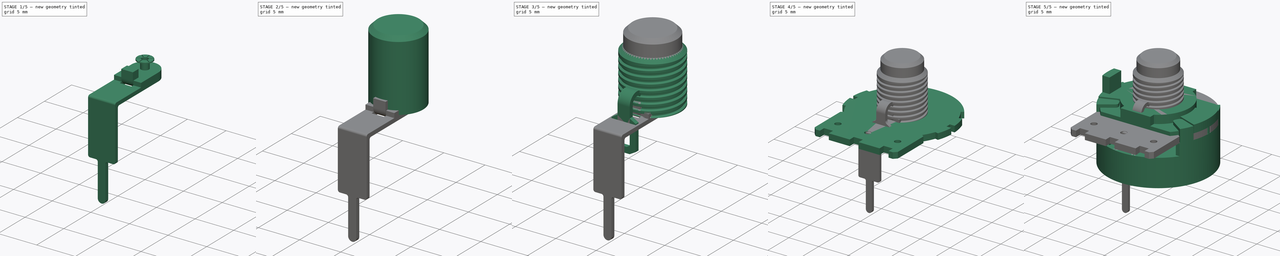
[diagram: build sequence overview — one tinted view per stage of 5, left to right]
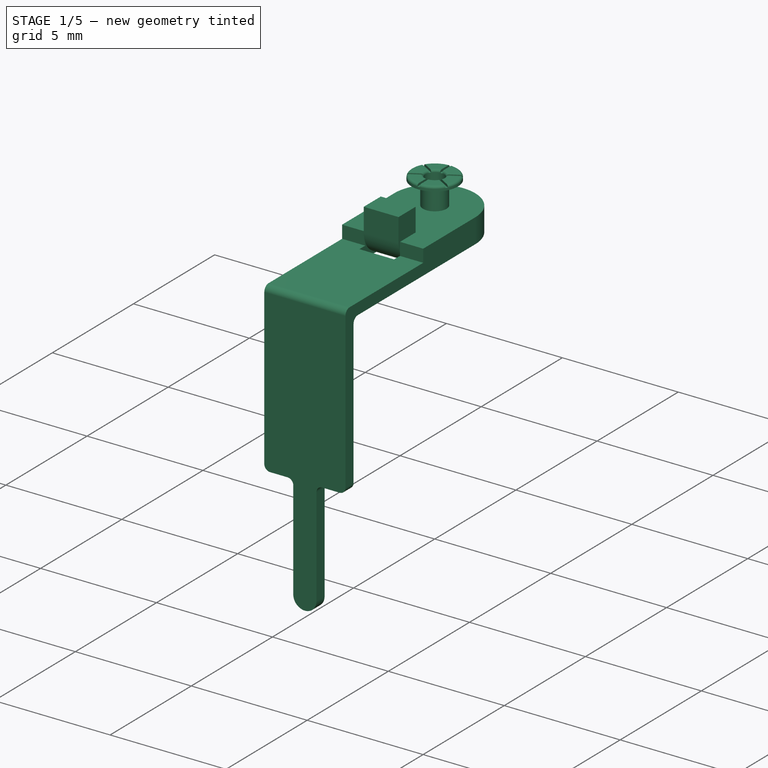
[diagram: stage 1 of 5 — iso view after this stage's code; geometry added in this stage tinted green]
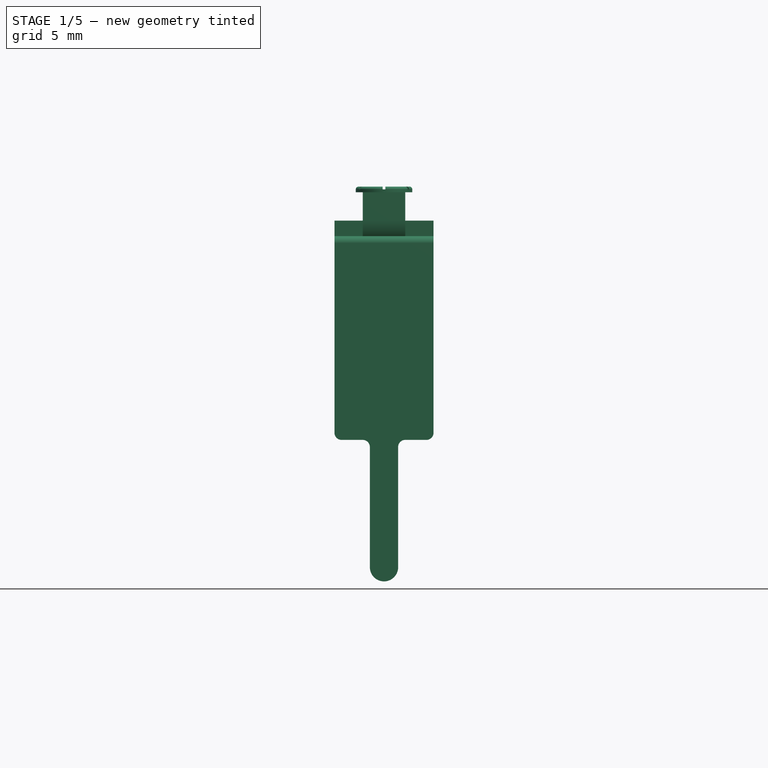
[diagram: stage 1 of 5 — front view after this stage's code; geometry added in this stage tinted green]
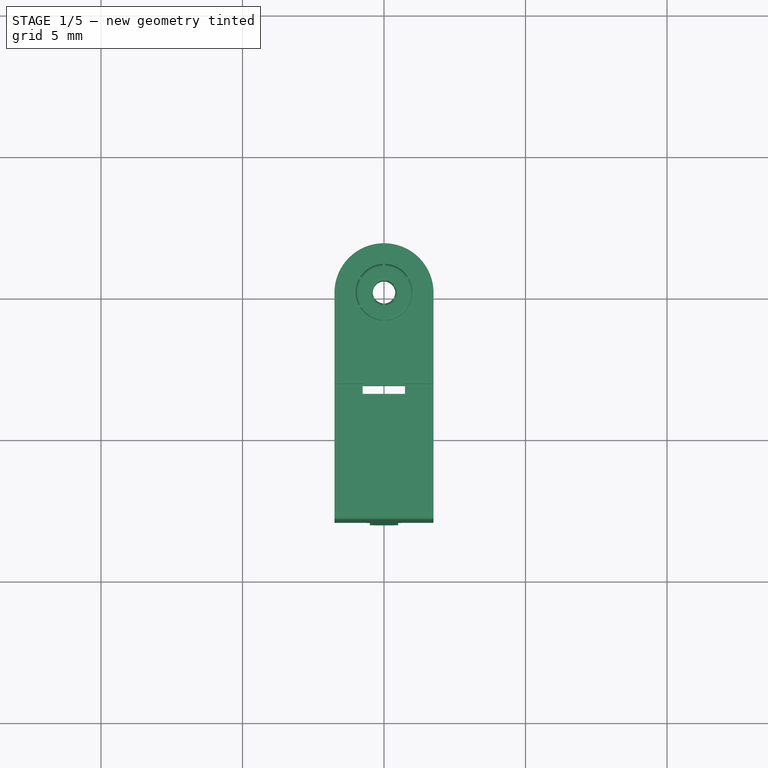
[diagram: stage 1 of 5 — top view after this stage's code; geometry added in this stage tinted green]
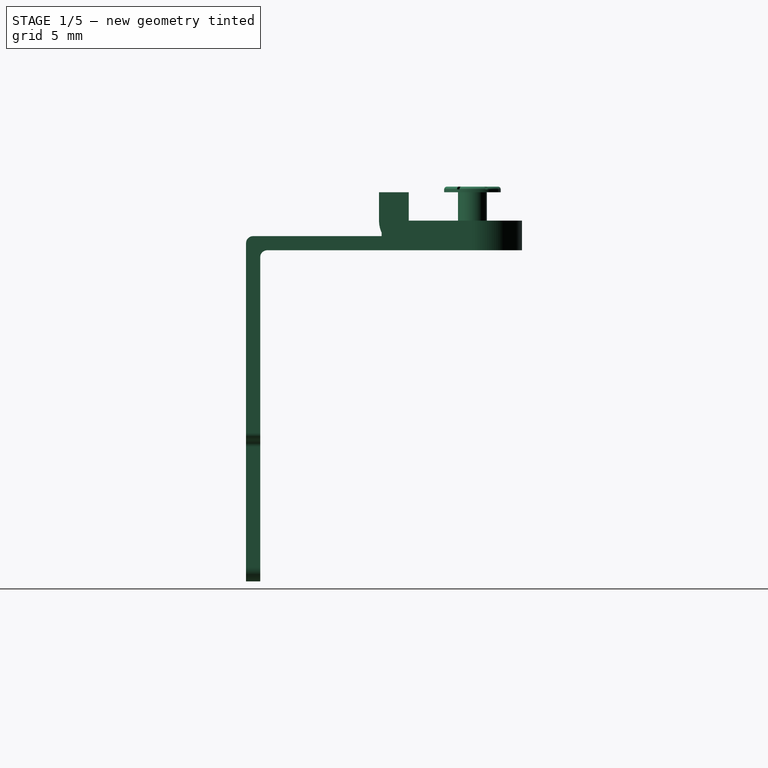
[diagram: stage 1 of 5 — right view after this stage's code; geometry added in this stage tinted green]
FCSTD DOCUMENT  (FreeCAD 0.19R16945 (Git))
Label: Alpha Taiwan RV16AF Series
License: All rights reserved
LicenseURL: http://en.wikipedia.org/wiki/All_rights_reserved
objects: Sketcher::SketchObject×38, PartDesign::Pad×23, PartDesign::Body×15, PartDesign::Fillet×15, PartDesign::Pocket×14, PartDesign::FeatureBase×6, App::DocumentObjectGroup×6, PartDesign::PolarPattern×5, PartDesign::FeaturePython×4, PartDesign::Plane×3, PartDesign::ShapeBinder×3, PartDesign::Chamfer×3, PartDesign::Mirrored×2, PartDesign::MultiTransform×2, App::Part×2, Spreadsheet::Sheet×1, PartDesign::Thickness×1, Part::Helix×1, PartDesign::SubtractivePipe×1
note: 174 computed .brp shape members not serialized (recipe doc carries the construction recipe); baked Part::Feature solids carry a one-line shape summary decoded from their .brp

FEATURE [PartDesign::Body] Body011  label="RV16_Terminal_Type_20_3"
  BaseFeature = -> Body009
  Group = -> [Clone003]
  Origin = -> Origin003
  Placement = pos=(5,-8.25,-1.5) rot=(0,0,1;0rad)
  Tip = -> Clone003
FEATURE [App::DocumentObjectGroup] Group004  label="20"
  Group = -> [Body010,Body009,Body011]
FEATURE [Sketcher::SketchObject] Sketch031
  MapMode = 5
  Support = -> [XY_Plane016]
  sketch-geometry (12):
    g0: Circle CenterX=0 CenterY=0 CenterZ=0 NormalX=0 NormalY=0 NormalZ=1 AngleXU=0 Radius=0.5
    g1: ArcOfCircle CenterX=0 CenterY=0 CenterZ=0 NormalX=0 NormalY=0 NormalZ=1 AngleXU=0 Radius=1.75 StartAngle=0 EndAngle=3.14159
    g2: LineSegment StartX=1.75 StartY=-4.25 StartZ=0 EndX=1.75 EndY=0 EndZ=0
    g3: LineSegment StartX=-1.75 StartY=2e-16 StartZ=0 EndX=-1.75 EndY=-4.25 EndZ=0
    g4: GeomPoint X=0 Y=1.75 Z=0
    g5: LineSegment StartX=-0.75 StartY=-2.25 StartZ=0 EndX=0.75 EndY=-2.25 EndZ=0
    g6: LineSegment StartX=0.75 StartY=-2.25 StartZ=0 EndX=0.75 EndY=-3.25 EndZ=0
    g7: LineSegment StartX=0.75 StartY=-3.25 StartZ=0 EndX=-0.75 EndY=-3.25 EndZ=0
    g8: LineSegment StartX=-0.75 StartY=-3.25 StartZ=0 EndX=-0.75 EndY=-2.25 EndZ=0
    g9: LineSegment StartX=-1.75 StartY=-4.25 StartZ=0 EndX=-1.75 EndY=-8 EndZ=0
    g10: LineSegment StartX=-1.75 StartY=-8 StartZ=0 EndX=1.75 EndY=-8 EndZ=0
    g11: LineSegment StartX=1.75 StartY=-8 StartZ=0 EndX=1.75 EndY=-4.25 EndZ=0
  constraints (33):
    c: Radius(g0) = 0.5
    c: Coincident(g1,g0)
    c: Coincident(g2,g1)
    c: Vertical(g2)
    c: Coincident(g3,g1)
    c: PointOnObject(g4,g1)
    c: DistanceY(g3,g4) = 6
    c: DistanceX(g3,g2) = 3.5
    c: Coincident(g0,g-1)
    c: Vertical(g3)
    c: PointOnObject(g1,g-1)
    c: PointOnObject(g1,g-1)
    c: PointOnObject(g4,g-2)
    c: DistanceY(g2,g0) = 4.25
    c: Coincident(g5,g6)
    c: Coincident(g6,g7)
    c: Coincident(g7,g8)
    c: Coincident(g8,g5)
    c: Horizontal(g7)
    c: Vertical(g6)
    c: Vertical(g8)
    c: Symmetric(g5,g5,g-2)
    c: DistanceX(g5,g5) = 1.5
    c: DistanceY(g6,g6) = 1
    c: DistanceY(g2,g6) = 1
    c: Coincident(g3,g9)
    c: Vertical(g9)
    c: Coincident(g9,g10)
    c: Horizontal(g10)
    c: Coincident(g10,g11)
    c: Coincident(g11,g2)
    c: Vertical(g11)
    c: DistanceY(g9,g0) = 8
FEATURE [PartDesign::Pad] Pad019
  Length = 0.5
  Length2 = 0.55
  Profile = -> Sketch031
  Type = 4
FEATURE [Sketcher::SketchObject] Sketch032
  MapMode = 5
  Support = -> [XY_Plane016]
  sketch-geometry (4):
    g0: LineSegment StartX=-2.81674 StartY=-8.24629 StartZ=0 EndX=2.1027 EndY=-8.24629 EndZ=0
    g1: LineSegment StartX=2.1027 StartY=-8.24629 StartZ=0 EndX=2.1027 EndY=-3.20834 EndZ=0
    g2: LineSegment StartX=2.1027 StartY=-3.20834 StartZ=0 EndX=-2.81674 EndY=-3.20834 EndZ=0
    g3: LineSegment StartX=-2.81674 StartY=-3.20834 StartZ=0 EndX=-2.81674 EndY=-8.24629 EndZ=0
  constraints (8):
    c: Coincident(g0,g1)
    c: Coincident(g1,g2)
    c: Coincident(g2,g3)
    c: Coincident(g3,g0)
    c: Horizontal(g0)
    c: Horizontal(g2)
    c: Vertical(g1)
    c: Vertical(g3)
FEATURE [PartDesign::Pocket] Pocket010
  BaseFeature = -> Pad019
  Length = 0.05
  Length2 = 1.55
  Profile = -> Sketch032
  Reversed = true
  Type = 4
FEATURE [Sketcher::SketchObject] Sketch033
  MapMode = 5
  Support = -> [XY_Plane016]
  sketch-geometry (2):
    g0: Circle CenterX=0 CenterY=0 CenterZ=0 NormalX=0 NormalY=0 NormalZ=1 AngleXU=0 Radius=0.51
    g1: Circle CenterX=0 CenterY=0 CenterZ=0 NormalX=0 NormalY=0 NormalZ=1 AngleXU=0 Radius=0.4
  constraints (4):
    c: Coincident(g0,g-1)
    c: Coincident(g1,g0)
    c: Radius(g0) = 0.51
    c: Radius(g1) = 0.4
FEATURE [Sketcher::SketchObject] Sketch034
  AttachmentOffset = pos=(0,0,1.5) rot=(0,0,1;0rad)
  MapMode = 5
  Placement = pos=(0,0,1.5) rot=(0,0,1;0rad)
  Support = -> [XY_Plane016]
  sketch-geometry (1):
    g0: Circle CenterX=0 CenterY=0 CenterZ=0 NormalX=0 NormalY=0 NormalZ=1 AngleXU=0 Radius=1
  constraints (2):
    c: Coincident(g0,g-1)
    c: Radius(g0) = 1
FEATURE [Sketcher::SketchObject] Sketch035
  AttachmentOffset = pos=(0,0,1.7) rot=(0,0,1;0rad)
  MapMode = 5
  Placement = pos=(0,0,1.7) rot=(0,0,1;0rad)
  Support = -> [XY_Plane016]
  sketch-geometry (1):
    g0: Circle CenterX=0 CenterY=0 CenterZ=0 NormalX=0 NormalY=0 NormalZ=1 AngleXU=0 Radius=0.4
  constraints (2):
    c: Coincident(g0,g-1)
    c: Radius(g0) = 0.4
FEATURE [Sketcher::SketchObject] Sketch036
  AttachmentOffset = pos=(0,0,1.7) rot=(0,0,1;0rad)
  MapMode = 5
  Placement = pos=(0,0,1.7) rot=(0,0,1;0rad)
  Support = -> [XY_Plane016]
  sketch-geometry (4):
    g0: LineSegment StartX=-0.05 StartY=0 StartZ=0 EndX=-0.05 EndY=1.7847 EndZ=0
    g1: LineSegment StartX=0.05 StartY=1.7847 StartZ=0 EndX=0.05 EndY=0 EndZ=0
    g2: LineSegment StartX=-0.05 StartY=1.7847 StartZ=0 EndX=0.05 EndY=1.7847 EndZ=0
    g3: LineSegment StartX=-0.05 StartY=0 StartZ=0 EndX=0.05 EndY=0 EndZ=0
  constraints (10):
    c: PointOnObject(g0,g-1)
    c: Vertical(g0)
    c: PointOnObject(g1,g-1)
    c: Vertical(g1)
    c: Coincident(g2,g0)
    c: Coincident(g2,g1)
    c: Coincident(g3,g0)
    c: Coincident(g3,g1)
    c: DistanceX(g2,g2) = 0.1
    c: Symmetric(g1,g0,g-2)
FEATURE [Sketcher::SketchObject] Sketch037
  MapMode = 5
  Support = -> [XY_Plane016]
  sketch-geometry (4):
    g0: LineSegment StartX=-0.753187 StartY=-3.24536 StartZ=0 EndX=0.743052 EndY=-3.24536 EndZ=0
    g1: LineSegment StartX=0.743052 StartY=-3.24536 StartZ=0 EndX=0.743052 EndY=-3.56595 EndZ=0
    g2: LineSegment StartX=0.743052 StartY=-3.56595 StartZ=0 EndX=-0.753187 EndY=-3.56595 EndZ=0
    g3: LineSegment StartX=-0.753187 StartY=-3.56595 StartZ=0 EndX=-0.753187 EndY=-3.24536 EndZ=0
  constraints (8):
    c: Coincident(g0,g1)
    c: Coincident(g1,g2)
    c: Coincident(g2,g3)
    c: Coincident(g3,g0)
    c: Horizontal(g0)
    c: Horizontal(g2)
    c: Vertical(g1)
    c: Vertical(g3)
FEATURE [PartDesign::Pocket] Pocket013
  BaseFeature = -> Pocket010
  Length = 5
  Length2 = 100
  Profile = -> Sketch037
  Type = 0
FEATURE [PartDesign::Pad] Pad020
  BaseFeature = -> Pocket013
  Length = 1.5
  Length2 = 100
  Profile = -> Sketch033
  Type = 0
FEATURE [PartDesign::Pad] Pad021
  BaseFeature = -> Pad020
  Length = 0.2
  Length2 = 100
  Profile = -> Sketch034
  Type = 0
FEATURE [PartDesign::Pocket] Pocket011
  BaseFeature = -> Pad021
  Length = 1
  Length2 = 100
  Profile = -> Sketch035
  Type = 0
FEATURE [PartDesign::Fillet] Fillet012
  Base = -> Pocket011 [Edge5,Edge3]
  BaseFeature = -> Pocket011
  Radius = 0.1
FEATURE [PartDesign::Pocket] Pocket012
  BaseFeature = -> Fillet012
  Length = 0.1
  Length2 = 100
  Profile = -> Sketch036
  Type = 0
FEATURE [PartDesign::PolarPattern] PolarPattern004
  Angle = 360
  Axis = -> Sketch036 [N_Axis]
  BaseFeature = -> Pocket012
  Occurrences = 6
  Originals = -> [Pocket012]
FEATURE [Sketcher::SketchObject] Sketch038
  AttachmentOffset = pos=(0,0,8) rot=(0,0,1;0rad)
  MapMode = 5
  Placement = pos=(0,-8,-1.8e-15) rot=(1,0,0;1.5708rad)
  Support = -> [XZ_Plane016]
  sketch-geometry (9):
    g0: LineSegment StartX=-1.75 StartY=-0.55 StartZ=0 EndX=1.75 EndY=-0.55 EndZ=0
    g1: LineSegment StartX=1.75 StartY=-0.55 StartZ=0 EndX=1.75 EndY=-7.25 EndZ=0
    g2: LineSegment StartX=-1.75 StartY=-7.25 StartZ=0 EndX=-1.75 EndY=-0.55 EndZ=0
    g3: LineSegment StartX=-1.75 StartY=-7.25 StartZ=0 EndX=-0.5 EndY=-7.25 EndZ=0
    g4: LineSegment StartX=-0.5 StartY=-7.25 StartZ=0 EndX=-0.5 EndY=-11.75 EndZ=0
    g5: LineSegment StartX=0.5 StartY=-11.75 StartZ=0 EndX=0.5 EndY=-7.25 EndZ=0
    g6: LineSegment StartX=0.5 StartY=-7.25 StartZ=0 EndX=1.75 EndY=-7.25 EndZ=0
    g7: ArcOfCircle CenterX=0 CenterY=-11.75 CenterZ=0 NormalX=0 NormalY=0 NormalZ=1 AngleXU=0 Radius=0.5 StartAngle=3.14159 EndAngle=6.28319
    g8: GeomPoint X=0 Y=-12.25 Z=0
  constraints (25):
    c: Coincident(g0,g1)
    c: Coincident(g2,g0)
    c: Vertical(g1)
    c: Vertical(g2)
    c: Symmetric(g0,g0,g-2)
    c: DistanceX(g0,g0) = 3.5
    c: DistanceY(g0,g-1) = 0.55
    c: Equal(g2,g1)
    c: DistanceY(g1,g1) = 6.7
    c: Coincident(g2,g3)
    c: Horizontal(g3)
    c: Coincident(g3,g4)
    c: Vertical(g4)
    c: Coincident(g5,g6)
    c: Coincident(g6,g1)
    c: Horizontal(g6)
    c: Symmetric(g5,g4,g-2)
    c: Equal(g6,g3)
    c: DistanceX(g4,g5) = 1
    c: Coincident(g7,g4)
    c: Coincident(g7,g5)
    c: Horizontal(g7,g4)
    c: PointOnObject(g8,g7)
    c: PointOnObject(g8,g-2)
    c: DistanceY(g8,g1) = 5
FEATURE [PartDesign::Pad] Pad022
  BaseFeature = -> PolarPattern004
  Length = 0.5
  Length2 = 100
  Profile = -> Sketch038
  Refine = true
  Reversed = true
  Type = 0
FEATURE [PartDesign::FeaturePython] Bend003  # WARN: FeaturePython — macro-defined, semantics opaque (R4)
  AutoMiter = true
  BaseFeature = -> Pad022
  BendType = 0
  LengthList = [1]
  ReliefFactor = 0.7
  UseReliefFactor = false
  angle = 90
  baseObject = -> Pad022 [Face46]
  bendAList = [90]
  extend1 = 0
  extend2 = 0
  gap1 = 0
  gap2 = 0
  invert = false
  kfactor = 0.5
  length = 1
  miterangle1 = 0
  miterangle2 = 0
  offset = 0
  radius = 0.001
  reliefType = 0
  reliefd = 1
  reliefw = 0.8
  sketchflip = false
  sketchinvert = false
  unfold = false
FEATURE [PartDesign::Fillet] Fillet013
  Base = -> Bend003 [Edge55,Edge48,Edge86,Edge85]
  BaseFeature = -> Bend003
  Radius = 0.25
FEATURE [PartDesign::Fillet] Fillet014
  Base = -> Fillet013 [Edge35,Edge17]
  BaseFeature = -> Fillet013
  Radius = 0.25
FEATURE [PartDesign::Body] Body013  label="RV16_Terminal_Type_41_1"
  BaseFeature = -> Body012
  Group = -> [Clone004]
  Origin = -> Origin018
  Placement = pos=(-5,-8.25,-1.5) rot=(0,0,1;0rad)
  Tip = -> Clone004
FEATURE [PartDesign::FeatureBase] Clone005
  BaseFeature = -> Body012
FEATURE [PartDesign::Body] Body014  label="RV16_Terminal_Type_41_3"
  BaseFeature = -> Body012
  Group = -> [Clone005]
  Origin = -> Origin019
  Placement = pos=(5,-8.25,-1.5) rot=(0,0,1;0rad)
  Tip = -> Clone005
FEATURE [App::DocumentObjectGroup] Group005  label="41"
  Group = -> [Body013,Body012,Body014]
FEATURE [App::Part] Part  label="RV16AF-XX-15R"
  Group = -> [Helix,Spreadsheet001,Part001,Group,Body002,Body,Body001,Group001,Body006,Body008,Body007,Group002,Body010,Body009,Body011,Group004,Body014,Body013,Body012,Group005,Body004,Body005,Group003]
  Origin = -> Origin012
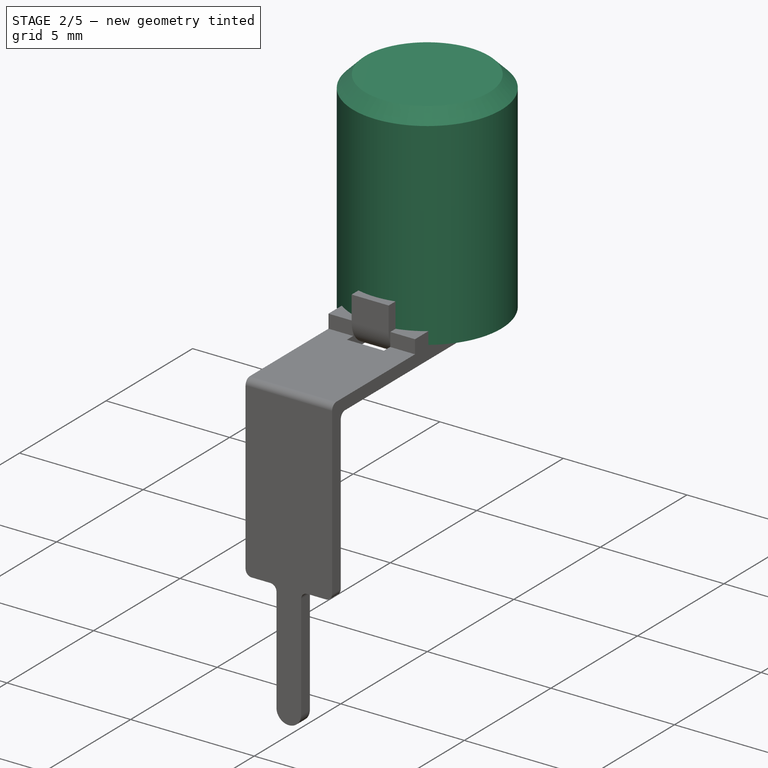
[diagram: stage 2 of 5 — iso view after this stage's code; geometry added in this stage tinted green]
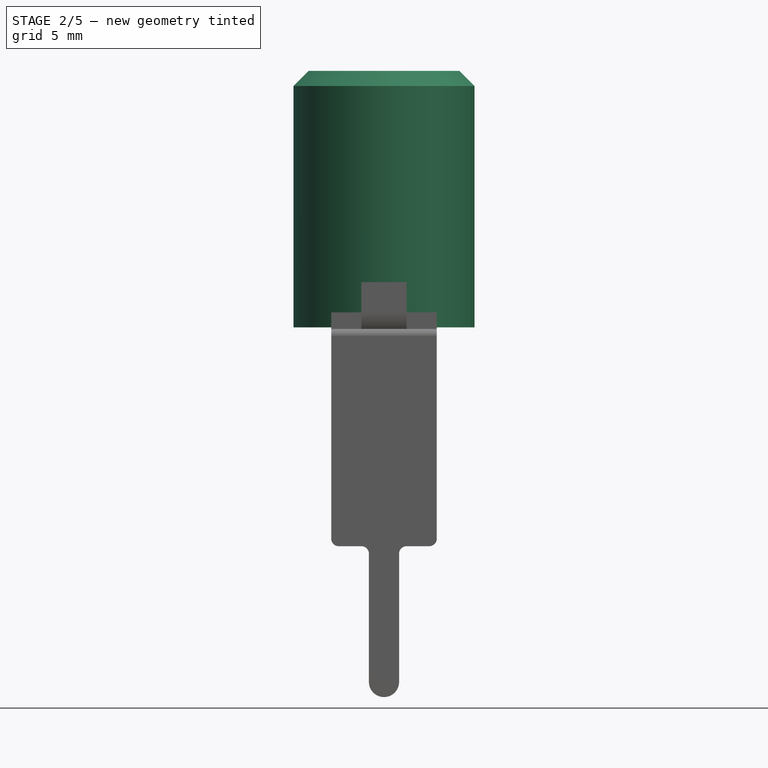
[diagram: stage 2 of 5 — front view after this stage's code; geometry added in this stage tinted green]
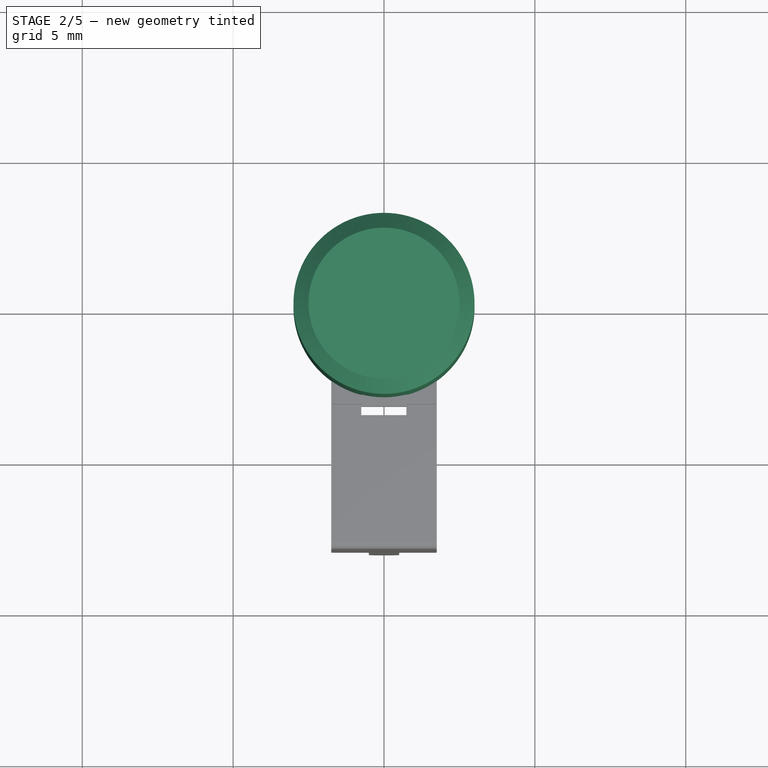
[diagram: stage 2 of 5 — top view after this stage's code; geometry added in this stage tinted green]
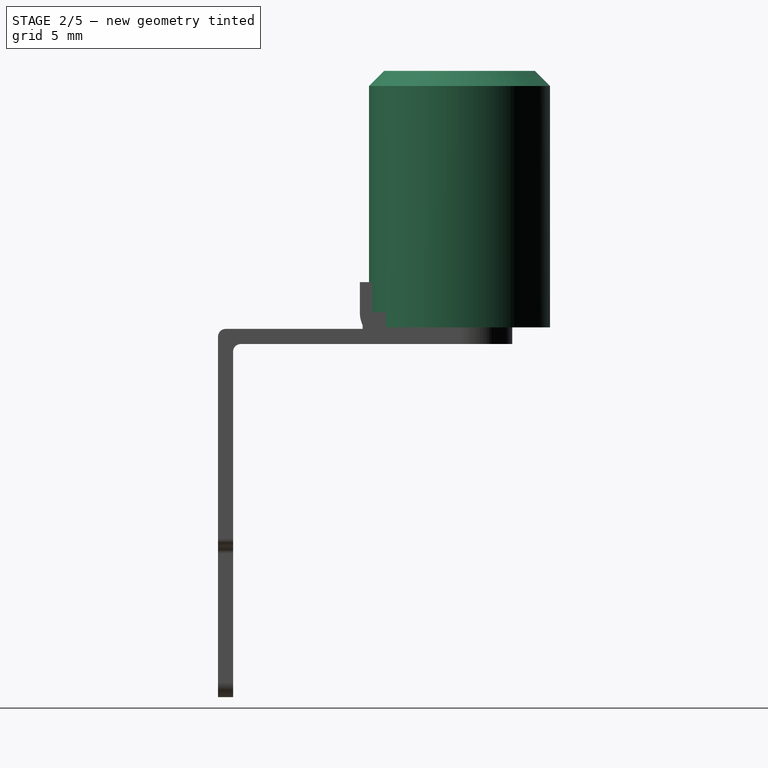
[diagram: stage 2 of 5 — right view after this stage's code; geometry added in this stage tinted green]
FEATURE [PartDesign::Body] Body001  label="RV16_Wafer_"
  Group = -> [ShapeBinder,Sketch006,Pad005,Sketch014,Pocket002,Sketch015,Pocket003,Chamfer001]
  Origin = -> Origin001
  Tip = -> Chamfer001
FEATURE [Sketcher::SketchObject] Sketch016
  MapMode = 5
  Support = -> [XY_Plane007]
  sketch-geometry (1):
    g0: Circle CenterX=0 CenterY=0 CenterZ=0 NormalX=0 NormalY=0 NormalZ=1 AngleXU=0 Radius=3
  constraints (2):
    c: Coincident(g0,g-1)
    c: Radius(g0) = 3
FEATURE [PartDesign::Pad] Pad010
  Length = 8.5
  Length2 = 100
  Profile = -> Sketch016
  Type = 0
FEATURE [PartDesign::Chamfer] Chamfer002
  Base = -> Pad010 [Edge3]
  BaseFeature = -> Pad010
  Size = 0.5
FEATURE [PartDesign::Body] Body008  label="RV16_Terminal_Type_10_3"
  BaseFeature = -> Body006
  Group = -> [Clone001]
  Origin = -> Origin011
  Placement = pos=(5,-8.25,-1.5) rot=(0,0,1;0rad)
  Tip = -> Clone001
FEATURE [App::DocumentObjectGroup] Group  label="Reference"
  Group = -> [Helix,Part001,Spreadsheet001]
FEATURE [App::DocumentObjectGroup] Group001  label="RV16AF"
  Group = -> [Body,Body002,Body001]
FEATURE [App::DocumentObjectGroup] Group002  label="10"
  Group = -> [Body007,Body008,Body006]
FEATURE [App::DocumentObjectGroup] Group003  label="15R"
  Group = -> [Body004,Body005]
FEATURE [Sketcher::SketchObject] Sketch024
  MapMode = 5
  Support = -> [XY_Plane013]
  sketch-geometry (17):
    g0: Circle CenterX=0 CenterY=0 CenterZ=0 NormalX=0 NormalY=0 NormalZ=1 AngleXU=0 Radius=0.5
    g1: ArcOfCircle CenterX=0 CenterY=0 CenterZ=0 NormalX=0 NormalY=0 NormalZ=1 AngleXU=0 Radius=1.75 StartAngle=0 EndAngle=3.14159
    g2: LineSegment StartX=1.75 StartY=-4.25 StartZ=0 EndX=1.75 EndY=0 EndZ=0
    g3: LineSegment StartX=-1.75 StartY=0 StartZ=0 EndX=-1.75 EndY=-4.25 EndZ=0
    g4: GeomPoint X=0 Y=1.75 Z=0
    g5: LineSegment StartX=-0.75 StartY=-2.25 StartZ=0 EndX=0.75 EndY=-2.25 EndZ=0
    g6: LineSegment StartX=0.75 StartY=-2.25 StartZ=0 EndX=0.75 EndY=-3.25 EndZ=0
    g7: LineSegment StartX=0.75 StartY=-3.25 StartZ=0 EndX=-0.75 EndY=-3.25 EndZ=0
    g8: LineSegment StartX=-0.75 StartY=-3.25 StartZ=0 EndX=-0.75 EndY=-2.25 EndZ=0
    g9: LineSegment StartX=-0.5 StartY=-4.25 StartZ=0 EndX=-0.5 EndY=-7.25 EndZ=0
    g10: LineSegment StartX=0.5 StartY=-7.25 StartZ=0 EndX=0.5 EndY=-4.25 EndZ=0
    g11: ArcOfCircle CenterX=0 CenterY=-7.25 CenterZ=0 NormalX=0 NormalY=0 NormalZ=1 AngleXU=0 Radius=0.5 StartAngle=3.14159 EndAngle=6.28319
    g12: GeomPoint X=0 Y=-7.75 Z=0
    g13: ArcOfCircle CenterX=-1.00679 CenterY=-4.25 CenterZ=0 NormalX=0 NormalY=0 NormalZ=1 AngleXU=0 Radius=0.506792 StartAngle=0 EndAngle=3.14159
    g14: ArcOfCircle CenterX=1.00679 CenterY=-4.25 CenterZ=0 NormalX=0 NormalY=0 NormalZ=1 AngleXU=0 Radius=0.506792 StartAngle=-9e-16 EndAngle=3.14159
    g15: LineSegment StartX=1.51358 StartY=-4.25 StartZ=0 EndX=1.75 EndY=-4.25 EndZ=0
    g16: LineSegment StartX=-1.51358 StartY=-4.25 StartZ=0 EndX=-1.75 EndY=-4.25 EndZ=0
  constraints (49):
    c: Radius(g0) = 0.5
    c: Coincident(g1,g0)
    c: Coincident(g2,g1)
    c: Vertical(g2)
    c: Coincident(g3,g1)
    c: PointOnObject(g4,g1)
    c: DistanceY(g3,g4) = 6
    c: DistanceX(g3,g2) = 3.5
    c: Coincident(g0,g-1)
    c: Vertical(g3)
    c: PointOnObject(g1,g-1)
    c: PointOnObject(g1,g-1)
    c: PointOnObject(g4,g-2)
    c: DistanceY(g2,g0) = 4.25
    c: Coincident(g5,g6)
    c: Coincident(g6,g7)
    c: Coincident(g7,g8)
    c: Coincident(g8,g5)
    c: Horizontal(g7)
    c: Vertical(g6)
    c: Vertical(g8)
    c: Symmetric(g5,g5,g-2)
    c: DistanceX(g5,g5) = 1.5
    c: DistanceY(g6,g6) = 1
    c: DistanceY(g2,g6) = 1
    c: Vertical(g9)
    c: Vertical(g10)
    c: Symmetric(g10,g9,g-2)
    c: DistanceX(g9,g10) = 1
    c: Horizontal(g10,g9)
    c: Coincident(g11,g9)
    c: Coincident(g11,g10)
    c: PointOnObject(g12,g11)
    c: PointOnObject(g12,g-2)
    c: Horizontal(g11,g10)
    c: DistanceY(g12,g9) = 3.5
    c: Coincident(g13,g9)
    c: Coincident(g14,g10)
    c: Coincident(g15,g14)
    c: Coincident(g15,g2)
    c: Coincident(g16,g13)
    c: Coincident(g16,g3)
    c: Horizontal(g9,g13)
    c: Horizontal(g14,g10)
    c: Horizontal(g15)
    c: Horizontal(g14,g14)
    c: Horizontal(g16)
    c: Horizontal(g13,g13)
    c: Equal(g16,g15)
FEATURE [PartDesign::Pad] Pad016
  Length = 0.5
  Length2 = 0.55
  Profile = -> Sketch024
  Type = 4
FEATURE [Sketcher::SketchObject] Sketch025
  MapMode = 5
  Support = -> [XY_Plane013]
  sketch-geometry (4):
    g0: LineSegment StartX=-2.81674 StartY=-8.24629 StartZ=0 EndX=2.1027 EndY=-8.24629 EndZ=0
    g1: LineSegment StartX=2.1027 StartY=-8.24629 StartZ=0 EndX=2.1027 EndY=-3.20834 EndZ=0
    g2: LineSegment StartX=2.1027 StartY=-3.20834 StartZ=0 EndX=-2.81674 EndY=-3.20834 EndZ=0
    g3: LineSegment StartX=-2.81674 StartY=-3.20834 StartZ=0 EndX=-2.81674 EndY=-8.24629 EndZ=0
  constraints (8):
    c: Coincident(g0,g1)
    c: Coincident(g1,g2)
    c: Coincident(g2,g3)
    c: Coincident(g3,g0)
    c: Horizontal(g0)
    c: Horizontal(g2)
    c: Vertical(g1)
    c: Vertical(g3)
FEATURE [PartDesign::Pocket] Pocket006
  BaseFeature = -> Pad016
  Length = 0.05
  Length2 = 1.55
  Profile = -> Sketch025
  Reversed = true
  Type = 4
FEATURE [Sketcher::SketchObject] Sketch026
  MapMode = 5
  Support = -> [XY_Plane013]
  sketch-geometry (2):
    g0: Circle CenterX=0 CenterY=0 CenterZ=0 NormalX=0 NormalY=0 NormalZ=1 AngleXU=0 Radius=0.51
    g1: Circle CenterX=0 CenterY=0 CenterZ=0 NormalX=0 NormalY=0 NormalZ=1 AngleXU=0 Radius=0.4
  constraints (4):
    c: Coincident(g0,g-1)
    c: Coincident(g1,g0)
    c: Radius(g0) = 0.51
    c: Radius(g1) = 0.4
FEATURE [Sketcher::SketchObject] Sketch027
  AttachmentOffset = pos=(0,0,1.5) rot=(0,0,1;0rad)
  MapMode = 5
  Placement = pos=(0,0,1.5) rot=(0,0,1;0rad)
  Support = -> [XY_Plane013]
  sketch-geometry (1):
    g0: Circle CenterX=0 CenterY=0 CenterZ=0 NormalX=0 NormalY=0 NormalZ=1 AngleXU=0 Radius=1
  constraints (2):
    c: Coincident(g0,g-1)
    c: Radius(g0) = 1
FEATURE [Sketcher::SketchObject] Sketch028
  AttachmentOffset = pos=(0,0,1.7) rot=(0,0,1;0rad)
  MapMode = 5
  Placement = pos=(0,0,1.7) rot=(0,0,1;0rad)
  Support = -> [XY_Plane013]
  sketch-geometry (1):
    g0: Circle CenterX=0 CenterY=0 CenterZ=0 NormalX=0 NormalY=0 NormalZ=1 AngleXU=0 Radius=0.4
  constraints (2):
    c: Coincident(g0,g-1)
    c: Radius(g0) = 0.4
FEATURE [Sketcher::SketchObject] Sketch029
  AttachmentOffset = pos=(0,0,1.7) rot=(0,0,1;0rad)
  MapMode = 5
  Placement = pos=(0,0,1.7) rot=(0,0,1;0rad)
  Support = -> [XY_Plane013]
  sketch-geometry (4):
    g0: LineSegment StartX=-0.05 StartY=0 StartZ=0 EndX=-0.05 EndY=1.7847 EndZ=0
    g1: LineSegment StartX=0.05 StartY=1.7847 StartZ=0 EndX=0.05 EndY=0 EndZ=0
    g2: LineSegment StartX=-0.05 StartY=1.7847 StartZ=0 EndX=0.05 EndY=1.7847 EndZ=0
    g3: LineSegment StartX=-0.05 StartY=0 StartZ=0 EndX=0.05 EndY=0 EndZ=0
  constraints (10):
    c: PointOnObject(g0,g-1)
    c: Vertical(g0)
    c: PointOnObject(g1,g-1)
    c: Vertical(g1)
    c: Coincident(g2,g0)
    c: Coincident(g2,g1)
    c: Coincident(g3,g0)
    c: Coincident(g3,g1)
    c: DistanceX(g2,g2) = 0.1
    c: Symmetric(g1,g0,g-2)
FEATURE [Sketcher::SketchObject] Sketch030
  MapMode = 5
  Support = -> [XY_Plane013]
  sketch-geometry (4):
    g0: LineSegment StartX=-0.753187 StartY=-3.24536 StartZ=0 EndX=0.743052 EndY=-3.24536 EndZ=0
    g1: LineSegment StartX=0.743052 StartY=-3.24536 StartZ=0 EndX=0.743052 EndY=-3.56595 EndZ=0
    g2: LineSegment StartX=0.743052 StartY=-3.56595 StartZ=0 EndX=-0.753187 EndY=-3.56595 EndZ=0
    g3: LineSegment StartX=-0.753187 StartY=-3.56595 StartZ=0 EndX=-0.753187 EndY=-3.24536 EndZ=0
  constraints (8):
    c: Coincident(g0,g1)
    c: Coincident(g1,g2)
    c: Coincident(g2,g3)
    c: Coincident(g3,g0)
    c: Horizontal(g0)
    c: Horizontal(g2)
    c: Vertical(g1)
    c: Vertical(g3)
FEATURE [PartDesign::Pocket] Pocket009
  BaseFeature = -> Pocket006
  Length = 5
  Length2 = 100
  Profile = -> Sketch030
  Type = 0
FEATURE [PartDesign::Pad] Pad017
  BaseFeature = -> Pocket009
  Length = 1.5
  Length2 = 100
  Profile = -> Sketch026
  Type = 0
FEATURE [PartDesign::Pad] Pad018
  BaseFeature = -> Pad017
  Length = 0.2
  Length2 = 100
  Profile = -> Sketch027
  Type = 0
FEATURE [PartDesign::Pocket] Pocket007
  BaseFeature = -> Pad018
  Length = 1
  Length2 = 100
  Profile = -> Sketch028
  Type = 0
FEATURE [PartDesign::Fillet] Fillet011
  Base = -> Pocket007 [Edge5,Edge3]
  BaseFeature = -> Pocket007
  Radius = 0.1
FEATURE [PartDesign::Pocket] Pocket008
  BaseFeature = -> Fillet011
  Length = 0.1
  Length2 = 100
  Profile = -> Sketch029
  Type = 0
FEATURE [PartDesign::PolarPattern] PolarPattern003
  Angle = 360
  Axis = -> Sketch029 [N_Axis]
  BaseFeature = -> Pocket008
  Occurrences = 6
  Originals = -> [Pocket008]
FEATURE [PartDesign::FeaturePython] Bend002  # WARN: FeaturePython — macro-defined, semantics opaque (R4)
  AutoMiter = true
  BaseFeature = -> PolarPattern003
  BendType = 0
  LengthList = [1]
  ReliefFactor = 0.7
  UseReliefFactor = false
  angle = 90
  baseObject = -> PolarPattern003 [Face50]
  bendAList = [90]
  extend1 = 0
  extend2 = 0
  gap1 = 0
  gap2 = 0
  invert = false
  kfactor = 0.5
  length = 1
  miterangle1 = 0
  miterangle2 = 0
  offset = 0
  radius = 0.001
  reliefType = 0
  reliefd = 1
  reliefw = 0.8
  sketchflip = false
  sketchinvert = false
  unfold = false
FEATURE [PartDesign::Body] Body009  label="RV16_Terminal_Type_20_2"
  Group = -> [Sketch024,Pad016,Sketch025,Pocket006,Sketch026,Sketch030,Pocket009,Pad017,Sketch027,Pad018,Sketch028,Pocket007,Sketch029,Fillet011,Pocket008,PolarPattern003,Bend002]
  Origin = -> Origin013
  Placement = pos=(0,-8.25,-1.5) rot=(0,0,1;0rad)
  Tip = -> Bend002
FEATURE [PartDesign::FeatureBase] Clone002
  BaseFeature = -> Body009
FEATURE [PartDesign::Body] Body010  label="RV16_Terminal_Type_20_1"
  BaseFeature = -> Body009
  Group = -> [Clone002]
  Origin = -> Origin015
  Placement = pos=(-5,-8.25,-1.5) rot=(0,0,1;0rad)
  Tip = -> Clone002
FEATURE [PartDesign::FeatureBase] Clone003
  BaseFeature = -> Body009
FEATURE [PartDesign::Body] Body012  label="RV16_Terminal_Type_41_2"
  Group = -> [Sketch031,Pad019,Sketch032,Pocket010,Sketch033,Sketch037,Pocket013,Pad020,Sketch034,Pad021,Sketch035,Pocket011,Sketch036,Fillet012,Pocket012,PolarPattern004,Sketch038,Pad022,Bend003,Fillet013,Fillet014]
  Origin = -> Origin016
  Placement = pos=(0,-8.25,-1.5) rot=(0,0,1;0rad)
  Tip = -> Fillet014
FEATURE [PartDesign::FeatureBase] Clone004
  BaseFeature = -> Body012
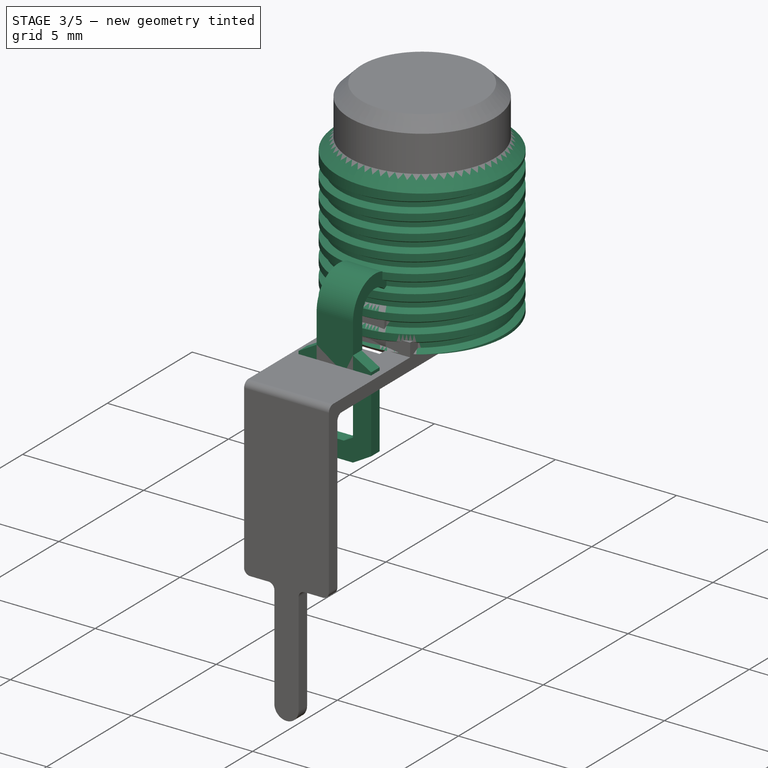
[diagram: stage 3 of 5 — iso view after this stage's code; geometry added in this stage tinted green]
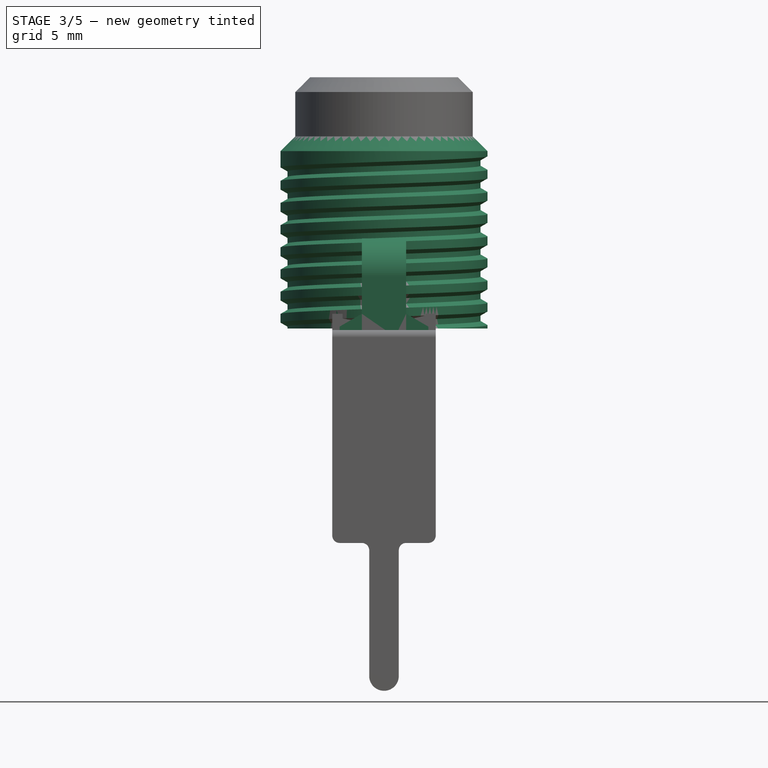
[diagram: stage 3 of 5 — front view after this stage's code; geometry added in this stage tinted green]
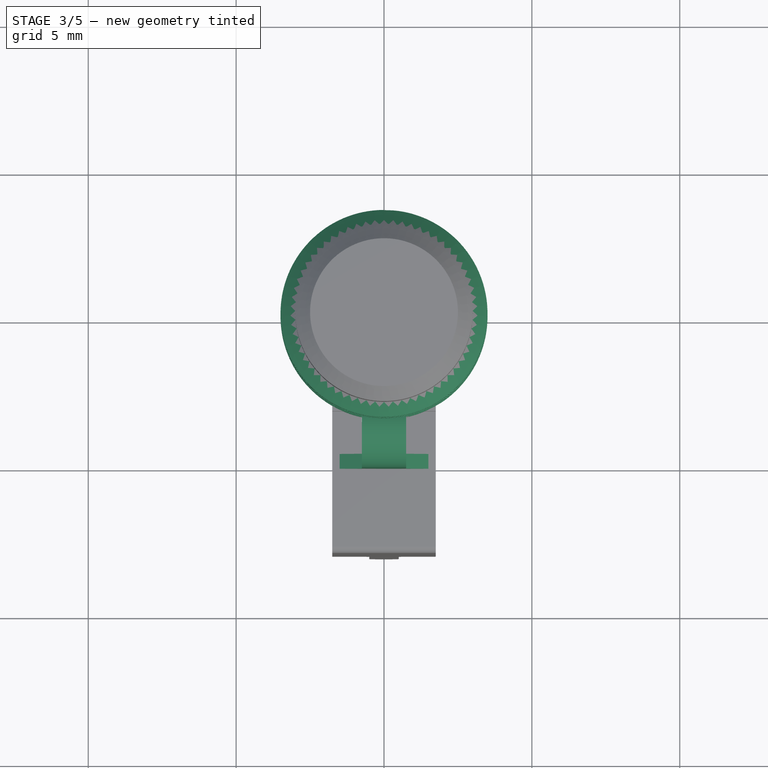
[diagram: stage 3 of 5 — top view after this stage's code; geometry added in this stage tinted green]
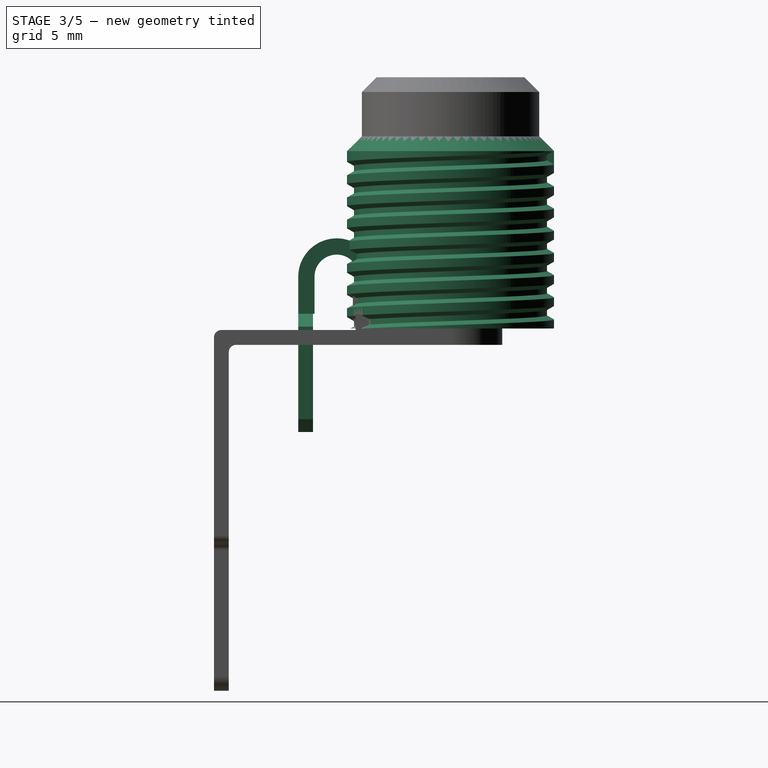
[diagram: stage 3 of 5 — right view after this stage's code; geometry added in this stage tinted green]
FEATURE [PartDesign::Body] Body002  label="Housing"
  Group = -> [DatumPlane,Sketch007,Pad006,Thickness,Sketch008,Pad007,MultiTransform,PolarPattern,Mirrored,Sketch009,Pad008,MultiTransform001,PolarPattern001,Mirrored001,ShapeBinder001,Sketch011,Pocket001,Fillet006]
  Origin = -> Origin002
  Tip = -> Fillet006
FEATURE [PartDesign::Plane] DatumPlane001  label="z=0"
  AttachmentOffset = pos=(0,0,2) rot=(0,0,1;0rad)
  Length = 24
  MapMode = 5
  Placement = pos=(0,0,2) rot=(0,0,1;0rad)
  ResizeMode = 0
  Support = -> [XY_Plane005]
  Width = 24
FEATURE [PartDesign::Plane] DatumPlane002  label="z=-9.5"
  AttachmentOffset = pos=(0,0,-9.5) rot=(0,0,1;0rad)
  Length = 24
  MapMode = 5
  Placement = pos=(0,0,-7.5) rot=(0,0,1;0rad)
  ResizeMode = 0
  Support = -> [DatumPlane001]
  Width = 24
FEATURE [PartDesign::Body] Body003
  Group = -> [DatumPlane001,DatumPlane002]
  Origin = -> Origin005
FEATURE [App::Part] Part001  label="RefPlanes"
  Group = -> [Body003]
  Origin = -> Origin004
FEATURE [Sketcher::SketchObject] Sketch012
  AttachmentOffset = pos=(0,0,0) rot=(0,0,1;1.5708rad)
  MapMode = 5
  Placement = pos=(0,0,0) rot=(0,0,1;1.5708rad)
  Support = -> [XY_Plane006]
  sketch-geometry (1):
    g0: Circle CenterX=0 CenterY=0 CenterZ=0 NormalX=0 NormalY=0 NormalZ=1 AngleXU=0 Radius=3.5
  constraints (2):
    c: Coincident(g0,g-1)
    c: Radius(g0) = 3.5
FEATURE [PartDesign::Pad] Pad009
  Length = 6.5
  Length2 = 100
  Profile = -> Sketch012
  Type = 0
FEATURE [Part::Helix] Helix
  Angle = 0
  AttacherType = Attacher::AttachEngine3D
  Height = 6.188
  LocalCoord = 0
  Pitch = 0.75
  Radius = 3.5
  Style = 1
FEATURE [Sketcher::SketchObject] Sketch013
  MapMode = 5
  Placement = pos=(0,0,0) rot=(0.57735,0.57735,0.57735;2.0944rad)
  Support = -> [YZ_Plane006]
  sketch-geometry (4):
    g0: LineSegment StartX=3.26326 StartY=-0.12074 StartZ=0 EndX=3.54085 EndY=0.039529 EndZ=0
    g1: LineSegment StartX=3.54085 StartY=0.039529 StartZ=0 EndX=3.54085 EndY=-0.468509 EndZ=0
    g2: LineSegment StartX=3.54085 StartY=-0.468509 StartZ=0 EndX=3.26326 EndY=-0.30824 EndZ=0
    g3: LineSegment StartX=3.26326 StartY=-0.30824 StartZ=0 EndX=3.26326 EndY=-0.12074 EndZ=0
  constraints (9):
    c: Coincident(g0,g1)
    c: Coincident(g1,g2)
    c: Coincident(g2,g3)
    c: Coincident(g3,g0)
    c: Vertical(g1)
    c: Vertical(g3)
    c: Angle(g2,g0) = 1.0472
    c: DistanceY(g3,g3) = 0.1875
    c: Equal(g0,g2)
FEATURE [PartDesign::ShapeBinder] ReferenceHelix
  Support = -> [Helix]
  TraceSupport = false
FEATURE [PartDesign::Chamfer] Chamfer
  Base = -> Pad009 [Edge3]
  BaseFeature = -> Pad009
  Size = 0.5
FEATURE [PartDesign::SubtractivePipe] SubtractivePipe
  AuxilleryCurvelinear = true
  AuxillerySpineTangent = false
  BaseFeature = -> Chamfer
  Binormal = (0,0,0)
  Mode = 2
  Profile = -> Sketch013
  Spine = -> ReferenceHelix
  SpineTangent = false
  Transformation = 0
  Transition = 0
FEATURE [PartDesign::Body] Body005  label="RV16_Shaft_15R_1"
  Group = -> [Sketch016,Pad010,Chamfer002]
  Origin = -> Origin007
  Placement = pos=(0,0,6.5) rot=(0,0,1;0rad)
  Tip = -> Chamfer002
FEATURE [Sketcher::SketchObject] Sketch017
  MapMode = 5
  Support = -> [XY_Plane008]
  sketch-geometry (8):
    g0: Circle CenterX=0 CenterY=0 CenterZ=0 NormalX=0 NormalY=0 NormalZ=1 AngleXU=0 Radius=0.5
    g1: ArcOfCircle CenterX=0 CenterY=0 CenterZ=0 NormalX=0 NormalY=0 NormalZ=1 AngleXU=0 Radius=1.75 StartAngle=0 EndAngle=3.14159
    g2: LineSegment StartX=1.75 StartY=-2.25 StartZ=0 EndX=1.75 EndY=0 EndZ=0
    g3: LineSegment StartX=-1.75 StartY=2e-16 StartZ=0 EndX=-1.75 EndY=-2.25 EndZ=0
    g4: GeomPoint X=0 Y=1.75 Z=0
    g5: LineSegment StartX=-0.75 StartY=-2.25 StartZ=0 EndX=0.75 EndY=-2.25 EndZ=0
    g6: LineSegment StartX=-0.75 StartY=-2.25 StartZ=0 EndX=-1.75 EndY=-2.25 EndZ=0
    g7: LineSegment StartX=0.75 StartY=-2.25 StartZ=0 EndX=1.75 EndY=-2.25 EndZ=0
  constraints (21):
    c: Radius(g0) = 0.5
    c: Coincident(g1,g0)
    c: Coincident(g2,g1)
    c: Vertical(g2)
    c: Coincident(g3,g1)
    c: PointOnObject(g4,g1)
    c: Coincident(g0,g-1)
    c: Vertical(g3)
    c: PointOnObject(g1,g-1)
    c: PointOnObject(g1,g-1)
    c: PointOnObject(g4,g-2)
    c: Symmetric(g5,g5,g-2)
    c: DistanceX(g5,g5) = 1.5
    c: Coincident(g6,g5)
    c: Horizontal(g6)
    c: Coincident(g7,g5)
    c: Horizontal(g7)
    c: Coincident(g3,g6)
    c: Coincident(g2,g7)
    c: DistanceX(g3,g2) = 3.5
    c: DistanceY(g3,g3) = 2.25
FEATURE [PartDesign::Pad] Pad011
  Length = 0.5
  Length2 = 0.55
  Profile = -> Sketch017
  Type = 4
FEATURE [Sketcher::SketchObject] Sketch018
  MapMode = 5
  Support = -> [XY_Plane008]
  sketch-geometry (2):
    g0: Circle CenterX=0 CenterY=0 CenterZ=0 NormalX=0 NormalY=0 NormalZ=1 AngleXU=0 Radius=0.51
    g1: Circle CenterX=0 CenterY=0 CenterZ=0 NormalX=0 NormalY=0 NormalZ=1 AngleXU=0 Radius=0.4
  constraints (4):
    c: Coincident(g0,g-1)
    c: Coincident(g1,g0)
    c: Radius(g0) = 0.51
    c: Radius(g1) = 0.4
FEATURE [PartDesign::Pad] Pad012
  BaseFeature = -> Pad011
  Length = 1.5
  Length2 = 100
  Profile = -> Sketch018
  Type = 0
FEATURE [Sketcher::SketchObject] Sketch019
  AttachmentOffset = pos=(0,0,1.5) rot=(0,0,1;0rad)
  MapMode = 5
  Placement = pos=(0,0,1.5) rot=(0,0,1;0rad)
  Support = -> [XY_Plane008]
  sketch-geometry (1):
    g0: Circle CenterX=0 CenterY=0 CenterZ=0 NormalX=0 NormalY=0 NormalZ=1 AngleXU=0 Radius=1
  constraints (2):
    c: Coincident(g0,g-1)
    c: Radius(g0) = 1
FEATURE [PartDesign::Pad] Pad013
  BaseFeature = -> Pad012
  Length = 0.2
  Length2 = 100
  Profile = -> Sketch019
  Type = 0
FEATURE [Sketcher::SketchObject] Sketch020
  AttachmentOffset = pos=(0,0,1.7) rot=(0,0,1;0rad)
  MapMode = 5
  Placement = pos=(0,0,1.7) rot=(0,0,1;0rad)
  Support = -> [XY_Plane008]
  sketch-geometry (1):
    g0: Circle CenterX=0 CenterY=0 CenterZ=0 NormalX=0 NormalY=0 NormalZ=1 AngleXU=0 Radius=0.4
  constraints (2):
    c: Coincident(g0,g-1)
    c: Radius(g0) = 0.4
FEATURE [PartDesign::Pocket] Pocket004
  BaseFeature = -> Pad013
  Length = 1
  Length2 = 100
  Profile = -> Sketch020
  Type = 0
FEATURE [Sketcher::SketchObject] Sketch021
  AttachmentOffset = pos=(0,0,1.7) rot=(0,0,1;0rad)
  MapMode = 5
  Placement = pos=(0,0,1.7) rot=(0,0,1;0rad)
  Support = -> [XY_Plane008]
  sketch-geometry (4):
    g0: LineSegment StartX=-0.05 StartY=0 StartZ=0 EndX=-0.05 EndY=1.7847 EndZ=0
    g1: LineSegment StartX=0.05 StartY=1.7847 StartZ=0 EndX=0.05 EndY=0 EndZ=0
    g2: LineSegment StartX=-0.05 StartY=1.7847 StartZ=0 EndX=0.05 EndY=1.7847 EndZ=0
    g3: LineSegment StartX=-0.05 StartY=0 StartZ=0 EndX=0.05 EndY=0 EndZ=0
  constraints (10):
    c: PointOnObject(g0,g-1)
    c: Vertical(g0)
    c: PointOnObject(g1,g-1)
    c: Vertical(g1)
    c: Coincident(g2,g0)
    c: Coincident(g2,g1)
    c: Coincident(g3,g0)
    c: Coincident(g3,g1)
    c: DistanceX(g2,g2) = 0.1
    c: Symmetric(g1,g0,g-2)
FEATURE [PartDesign::Fillet] Fillet
  Base = -> Pocket004 [Edge5,Edge3]
  BaseFeature = -> Pocket004
  Radius = 0.1
FEATURE [PartDesign::Pocket] Pocket005
  BaseFeature = -> Fillet
  Length = 0.1
  Length2 = 100
  Profile = -> Sketch021
  Type = 0
FEATURE [PartDesign::PolarPattern] PolarPattern002
  Angle = 360
  Axis = -> Sketch021 [N_Axis]
  BaseFeature = -> Pocket005
  Occurrences = 6
  Originals = -> [Pocket005]
FEATURE [Sketcher::SketchObject] Sketch022
  AttachmentOffset = pos=(0,0,2.25) rot=(0,0,1;0rad)
  MapMode = 5
  Placement = pos=(0,-2.25,-5e-16) rot=(1,0,0;1.5708rad)
  Support = -> [XZ_Plane008]
  sketch-geometry (4):
    g0: LineSegment StartX=-0.75 StartY=-0.55 StartZ=0 EndX=0.75 EndY=-0.55 EndZ=0
    g1: LineSegment StartX=0.75 StartY=-0.55 StartZ=0 EndX=0.75 EndY=0 EndZ=0
    g2: LineSegment StartX=0.75 StartY=0 StartZ=0 EndX=-0.75 EndY=0 EndZ=0
    g3: LineSegment StartX=-0.75 StartY=0 StartZ=0 EndX=-0.75 EndY=-0.55 EndZ=0
  constraints (11):
    c: Coincident(g0,g1)
    c: Coincident(g1,g2)
    c: Coincident(g2,g3)
    c: Coincident(g3,g0)
    c: Horizontal(g0)
    c: Vertical(g1)
    c: Vertical(g3)
    c: Symmetric(g1,g2,g-2)
    c: DistanceX(g2,g2) = 1.5
    c: DistanceY(g3,g3) = 0.55
    c: PointOnObject(g1,g-1)
FEATURE [PartDesign::Pad] Pad014
  BaseFeature = -> PolarPattern002
  Length = 0.05
  Length2 = 100
  Profile = -> Sketch022
  Type = 0
FEATURE [PartDesign::FeaturePython] Bend  # WARN: FeaturePython — macro-defined, semantics opaque (R4)
  AutoMiter = true
  BaseFeature = -> Pad014
  BendType = 0
  LengthList = [1.5]
  ReliefFactor = 0.7
  UseReliefFactor = false
  angle = 90
  baseObject = -> Pad014 [Face59]
  bendAList = [90]
  extend1 = 0
  extend2 = 0
  gap1 = 0
  gap2 = 0
  invert = false
  kfactor = 0.5
  length = 1.5
  miterangle1 = 0
  miterangle2 = 0
  offset = 0
  radius = 0.25
  reliefType = 0
  reliefd = 1
  reliefw = 0.8
  sketchflip = false
  sketchinvert = false
  unfold = false
FEATURE [PartDesign::FeaturePython] Bend001  # WARN: FeaturePython — macro-defined, semantics opaque (R4)
  AutoMiter = true
  BaseFeature = -> Bend
  BendType = 0
  LengthList = [1.25]
  ReliefFactor = 0.7
  UseReliefFactor = false
  angle = -180
  baseObject = -> Bend [Face3]
  bendAList = [-180]
  extend1 = 0
  extend2 = 0
  gap1 = 0
  gap2 = 0
  invert = false
  kfactor = 0.5
  length = 1.25
  miterangle1 = 0
  miterangle2 = 0
  offset = 0
  radius = 0.75
  reliefType = 0
  reliefd = 1
  reliefw = 0.8
  sketchflip = false
  sketchinvert = false
  unfold = false
FEATURE [Sketcher::SketchObject] Sketch023
  ExternalGeometry = -> [Bend001]
  MapMode = 5
  Placement = pos=(0,-5.15,-1.9e-15) rot=(1,0,0;1.5708rad)
  Support = -> [Bend001]
  sketch-geometry (16):
    g0: LineSegment StartX=0.75 StartY=0.5 StartZ=0 EndX=-0.75 EndY=0.5 EndZ=0
    g1: LineSegment StartX=-0.75 StartY=0.5 StartZ=0 EndX=-1.5 EndY=0.0669873 EndZ=0
    g2: LineSegment StartX=-1.5 StartY=0.0669873 StartZ=0 EndX=-1.5 EndY=-3.06699 EndZ=0
    g3: LineSegment StartX=-1.5 StartY=-3.06699 StartZ=0 EndX=-0.75 EndY=-3.5 EndZ=0
    g4: LineSegment StartX=-0.75 StartY=-3.5 StartZ=0 EndX=0.75 EndY=-3.5 EndZ=0
    g5: LineSegment StartX=0.75 StartY=-3.5 StartZ=0 EndX=1.5 EndY=-3.06699 EndZ=0
    g6: LineSegment StartX=1.5 StartY=-3.06699 StartZ=0 EndX=1.5 EndY=0.0669873 EndZ=0
    g7: LineSegment StartX=1.5 StartY=0.0669873 StartZ=0 EndX=0.75 EndY=0.5 EndZ=0
    g8: LineSegment StartX=0.375 StartY=-0.279306 StartZ=0 EndX=-0.375 EndY=-0.279306 EndZ=0
    g9: LineSegment StartX=-0.375 StartY=-0.279306 StartZ=0 EndX=-0.75 EndY=-0.495812 EndZ=0
    g10: LineSegment StartX=-0.75 StartY=-0.495812 StartZ=0 EndX=-0.75 EndY=-2.5628 EndZ=0
    g11: LineSegment StartX=-0.75 StartY=-2.5628 StartZ=0 EndX=-0.375 EndY=-2.77931 EndZ=0
    g12: LineSegment StartX=-0.375 StartY=-2.77931 StartZ=0 EndX=0.375 EndY=-2.77931 EndZ=0
    g13: LineSegment StartX=0.375 StartY=-2.77931 StartZ=0 EndX=0.75 EndY=-2.5628 EndZ=0
    g14: LineSegment StartX=0.75 StartY=-2.5628 StartZ=0 EndX=0.75 EndY=-0.495812 EndZ=0
    g15: LineSegment StartX=0.75 StartY=-0.495812 StartZ=0 EndX=0.375 EndY=-0.279306 EndZ=0
  constraints (39):
    c: Coincident(g-3,g0)
    c: Coincident(g0,g-3)
    c: Coincident(g0,g1)
    c: Coincident(g1,g2)
    c: Vertical(g2)
    c: Coincident(g2,g3)
    c: Coincident(g3,g4)
    c: Coincident(g4,g5)
    c: Coincident(g5,g6)
    c: Coincident(g6,g7)
    c: Coincident(g7,g0)
    c: DistanceX(g1,g6) = 3
    c: Angle(g5,g3) = 2.0944
    c: Symmetric(g3,g4,g-2)
    c: Angle(g1,g7) = 2.0944
    c: Symmetric(g6,g1,g-2)
    c: Symmetric(g5,g2,g-2)
    c: DistanceY(g4,g0) = 4
    c: Equal(g4,g0)
    c: Coincident(g8,g9)
    c: Coincident(g9,g10)
    c: Vertical(g10)
    c: Coincident(g10,g11)
    c: Coincident(g11,g12)
    c: Coincident(g12,g13)
    c: Coincident(g13,g14)
    c: Vertical(g14)
    c: Coincident(g14,g15)
    c: Coincident(g15,g8)
    c: DistanceY(g12,g8) = 2.5
    c: DistanceX(g9,g14) = 1.5
    c: Symmetric(g8,g8,g-2)
    c: Symmetric(g12,g11,g-2)
    c: Equal(g8,g12)
    c: Symmetric(g14,g9,g-2)
    c: Angle(g9,g15) = 2.0944
    c: Angle(g13,g11) = 2.0944
    c: DistanceX(g8,g8) = 0.75
    c: Horizontal(g13,g10)
FEATURE [PartDesign::Pad] Pad015
  BaseFeature = -> Bend001
  Length = 0.5
  Length2 = 100
  Profile = -> Sketch023
  Reversed = true
  Type = 0
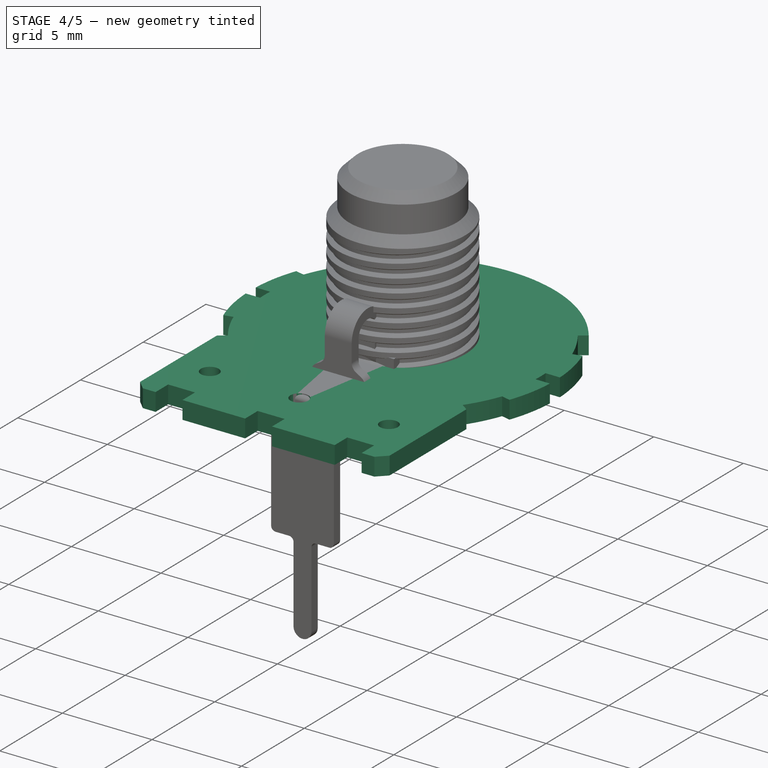
[diagram: stage 4 of 5 — iso view after this stage's code; geometry added in this stage tinted green]
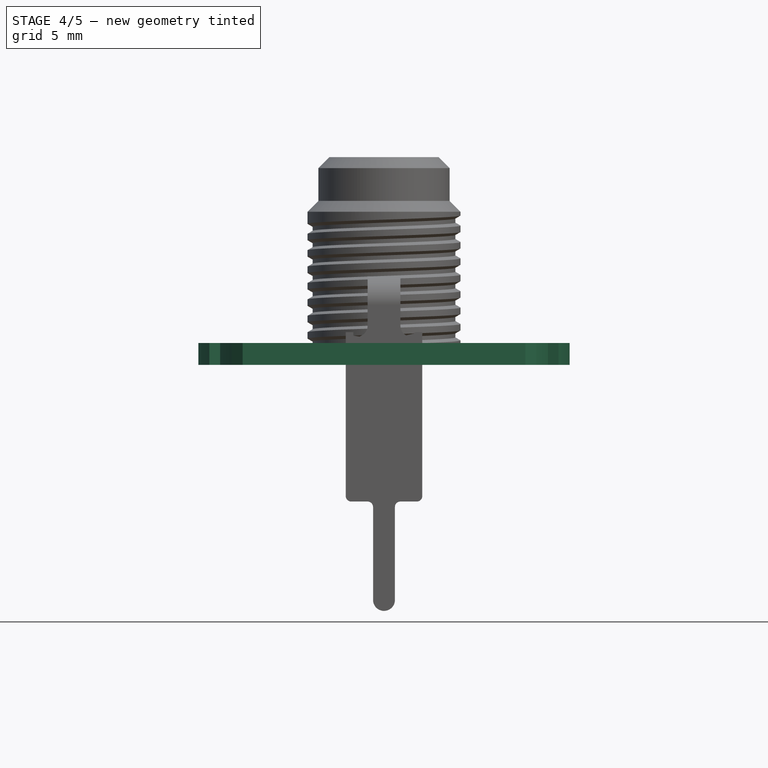
[diagram: stage 4 of 5 — front view after this stage's code; geometry added in this stage tinted green]
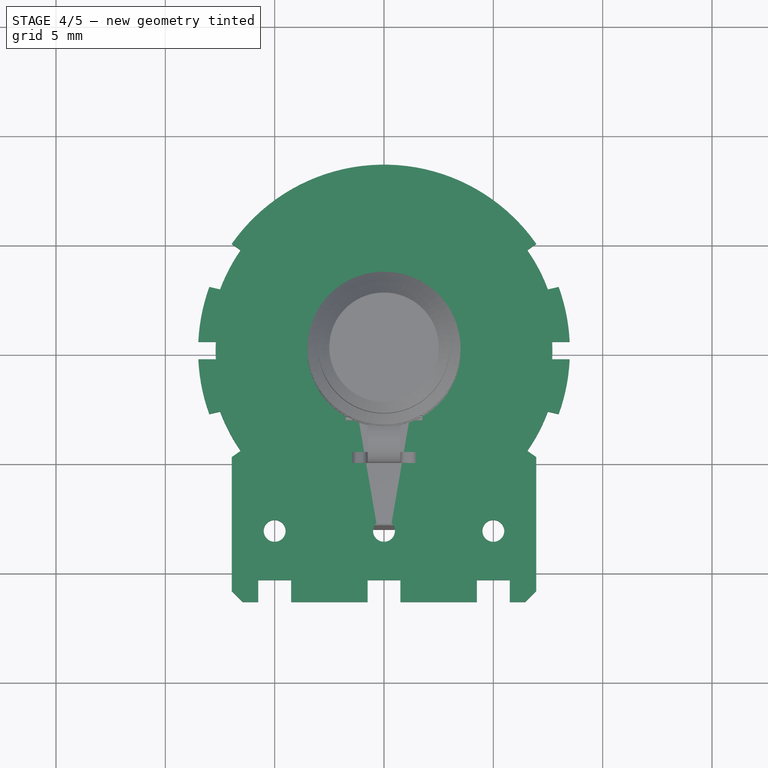
[diagram: stage 4 of 5 — top view after this stage's code; geometry added in this stage tinted green]
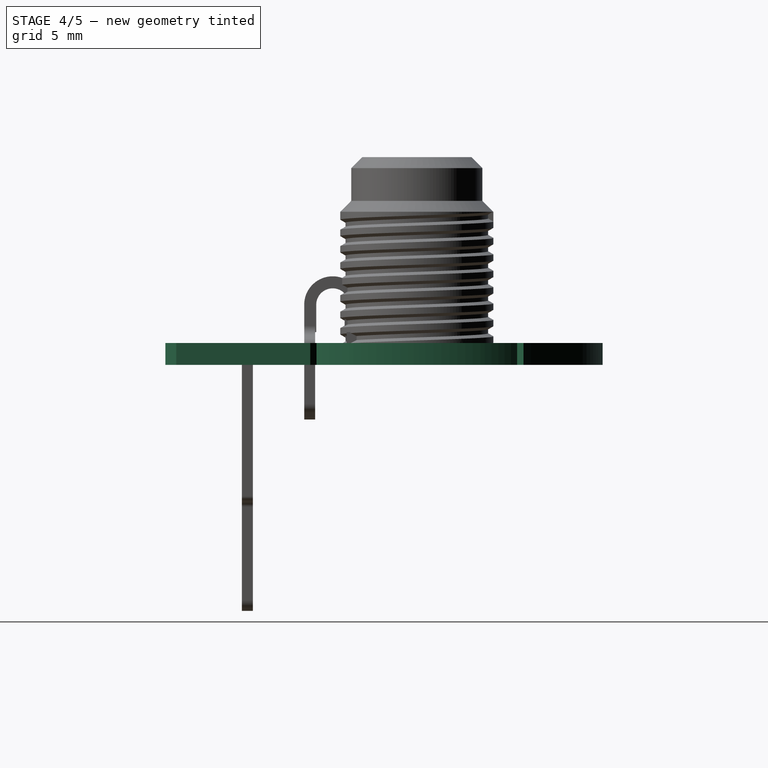
[diagram: stage 4 of 5 — right view after this stage's code; geometry added in this stage tinted green]
FEATURE [PartDesign::Body] Body004  label="Bushing_M7x0.75x6.5mm_"
  Group = -> [Sketch012,Pad009,Sketch013,Chamfer,SubtractivePipe,ReferenceHelix]
  Origin = -> Origin006
  Tip = -> SubtractivePipe
FEATURE [PartDesign::ShapeBinder] ShapeBinder
  TraceSupport = false
FEATURE [Sketcher::SketchObject] Sketch006  label="WaferSketch"
  ExternalGeometry = -> [ShapeBinder]
  MapMode = 5
  Placement = pos=(0,0,0) rot=(1,0,0;3.14159rad)
  Support = -> [ShapeBinder]
  sketch-geometry (30):
    g0: ArcOfCircle CenterX=0 CenterY=0 CenterZ=0 NormalX=0 NormalY=0 NormalZ=1 AngleXU=0 Radius=8.5 StartAngle=2.79253 EndAngle=3.09452
    g1: Circle [constr] CenterX=0 CenterY=0 CenterZ=0 NormalX=0 NormalY=0 NormalZ=1 AngleXU=0 Radius=8
    g2: ArcOfCircle CenterX=0 CenterY=0 CenterZ=0 NormalX=0 NormalY=0 NormalZ=1 AngleXU=0 Radius=8.5 StartAngle=3.18867 EndAngle=3.49066
    g3: LineSegment StartX=-7.98739 StartY=2.90717 StartZ=0 EndX=-7.49667 EndY=2.79283 EndZ=0
    g4: LineSegment StartX=-7.98739 StartY=-2.90717 StartZ=0 EndX=-7.49667 EndY=-2.79283 EndZ=0
    g5: LineSegment StartX=7.98739 StartY=2.90717 StartZ=0 EndX=7.49667 EndY=2.79283 EndZ=0
    g6: LineSegment StartX=7.98739 StartY=-2.90717 StartZ=0 EndX=7.49667 EndY=-2.79283 EndZ=0
    g7: ArcOfCircle CenterX=0 CenterY=0 CenterZ=0 NormalX=0 NormalY=0 NormalZ=1 AngleXU=0 Radius=8.5 StartAngle=0.0470762 EndAngle=0.349066
    g8: ArcOfCircle CenterX=0 CenterY=0 CenterZ=0 NormalX=0 NormalY=0 NormalZ=1 AngleXU=0 Radius=8.5 StartAngle=5.93412 EndAngle=6.23611
    g9: Circle [constr] CenterX=0 CenterY=0 CenterZ=0 NormalX=0 NormalY=0 NormalZ=1 AngleXU=0 Radius=8.5
    g10: LineSegment StartX=-6.96279 StartY=4.8754 StartZ=0 EndX=-6.55322 EndY=4.58861 EndZ=0
    g11: LineSegment StartX=6.96279 StartY=4.8754 StartZ=0 EndX=6.55322 EndY=4.58861 EndZ=0
    g12: LineSegment StartX=6.96279 StartY=-4.8754 StartZ=0 EndX=6.55322 EndY=-4.58861 EndZ=0
    g13: LineSegment StartX=-6.96279 StartY=-4.8754 StartZ=0 EndX=-6.55322 EndY=-4.58861 EndZ=0
    g14: ArcOfCircle CenterX=0 CenterY=0 CenterZ=0 NormalX=0 NormalY=0 NormalZ=1 AngleXU=0 Radius=8 StartAngle=2.53073 EndAngle=2.78498
    g15: ArcOfCircle CenterX=0 CenterY=0 CenterZ=0 NormalX=0 NormalY=0 NormalZ=1 AngleXU=0 Radius=8 StartAngle=0.356615 EndAngle=0.610865
    g16: ArcOfCircle CenterX=0 CenterY=0 CenterZ=0 NormalX=0 NormalY=0 NormalZ=1 AngleXU=0 Radius=8 StartAngle=5.67232 EndAngle=5.92657
    g17: ArcOfCircle CenterX=0 CenterY=0 CenterZ=0 NormalX=0 NormalY=0 NormalZ=1 AngleXU=0 Radius=8 StartAngle=3.49821 EndAngle=3.75246
    g18: Circle CenterX=0 CenterY=0 CenterZ=0 NormalX=0 NormalY=0 NormalZ=1 AngleXU=0 Radius=3
    g19: ArcOfCircle CenterX=0 CenterY=0 CenterZ=0 NormalX=0 NormalY=0 NormalZ=1 AngleXU=0 Radius=8.5 StartAngle=3.75246 EndAngle=5.67232
    g20: LineSegment StartX=-6.96279 StartY=4.8754 StartZ=0 EndX=-6.96279 EndY=11.5 EndZ=0
    g21: LineSegment StartX=6.96279 StartY=4.8754 StartZ=0 EndX=6.96279 EndY=11.5 EndZ=0
    g22: LineSegment StartX=6.96279 StartY=11.5 StartZ=0 EndX=-6.96279 EndY=11.5 EndZ=0
    g23: ArcOfCircle CenterX=0 CenterY=0 CenterZ=0 NormalX=0 NormalY=0 NormalZ=1 AngleXU=0 Radius=7.7 StartAngle=3.08962 EndAngle=3.19356
    g24: LineSegment StartX=-7.6896 StartY=0.4 StartZ=0 EndX=-8.49058 EndY=0.4 EndZ=0
    g25: LineSegment StartX=-7.6896 StartY=-0.4 StartZ=0 EndX=-8.49058 EndY=-0.4 EndZ=0
    g26: ArcOfCircle CenterX=0 CenterY=0 CenterZ=0 NormalX=0 NormalY=0 NormalZ=1 AngleXU=0 Radius=7.7 StartAngle=6.23121 EndAngle=6.33516
    g27: LineSegment StartX=8.49058 StartY=0.4 StartZ=0 EndX=7.6896 EndY=0.4 EndZ=0
    g28: LineSegment StartX=8.49058 StartY=-0.4 StartZ=0 EndX=7.6896 EndY=-0.4 EndZ=0
    g29: GeomPoint X=0 Y=-8.5 Z=0
  constraints (77):
    c: Coincident(g0,g-1)
    c: Coincident(g0,g-4)
    c: Coincident(g1,g0)
    c: PointOnObject(g-4,g1)
    c: Coincident(g2,g0)
    c: Coincident(g2,g-5)
    c: Coincident(g3,g0)
    c: Coincident(g3,g-4)
    c: Coincident(g4,g2)
    c: Coincident(g4,g-5)
    c: Coincident(g5,g-7)
    c: Coincident(g5,g-7)
    c: Coincident(g6,g-8)
    c: Coincident(g6,g-8)
    c: Coincident(g7,g0)
    c: Coincident(g7,g5)
    c: Coincident(g8,g0)
    c: Coincident(g8,g6)
    c: Coincident(g9,g0)
    c: PointOnObject(g0,g9)
    c: PointOnObject(g10,g9)
    c: Symmetric(g11,g10,g-2)
    c: Perpendicular(g1,g10)
    c: Perpendicular(g1,g11)
    c: PointOnObject(g13,g9)
    c: Perpendicular(g1,g13)
    c: Perpendicular(g1,g12)
    c: Symmetric(g12,g13,g-2)
    c: Coincident(g14,g0)
    c: Coincident(g14,g3)
    c: Coincident(g14,g10)
    c: Coincident(g15,g0)
    c: Coincident(g15,g11)
    c: Coincident(g15,g5)
    c: Coincident(g16,g0)
    c: Coincident(g16,g6)
    c: Coincident(g16,g12)
    c: Coincident(g17,g0)
    c: Coincident(g17,g13)
    c: Coincident(g17,g4)
    c: Coincident(g18,g0)
    c: Radius(g18) = 3
    c: Coincident(g19,g0)
    c: Coincident(g19,g13)
    c: Coincident(g19,g12)
    c: Coincident(g20,g10)
    c: Vertical(g20)
    c: Coincident(g21,g11)
    c: Vertical(g21)
    c: Coincident(g22,g21)
    c: Coincident(g22,g20)
    c: Horizontal(g22)
    c: Coincident(g23,g0)
    c: Distance(g0,g23) = 7.7
    c: Symmetric(g23,g23,g-1)
    c: Coincident(g24,g23)
    c: Coincident(g24,g0)
    c: Coincident(g25,g23)
    c: Tangent(g24,g-3)
    c: Tangent(g25,g-6)
    c: Coincident(g2,g25)
    c: Coincident(g26,g0)
    c: Distance(g26,g0) = 7.7
    c: Coincident(g27,g7)
    c: Coincident(g27,g26)
    c: Coincident(g28,g8)
    c: Coincident(g28,g26)
    c: Tangent(g27,g-9)
    c: Tangent(g28,g-9)
    c: Horizontal(g24)
    c: Horizontal(g27)
    c: Horizontal(g28)
    c: Angle(g-1,g11) = 0.610865
    c: Angle(g12,g-1) = 0.610865
    c: PointOnObject(g29,g19)
    c: PointOnObject(g29,g-2)
    c: DistanceY(g29,g20) = 20
FEATURE [PartDesign::Pad] Pad005  label="Wafer"
  Length = 1
  Length2 = 100
  Profile = -> Sketch006
  Type = 0
FEATURE [Sketcher::SketchObject] Sketch014  label="TerminalHoleSketch"
  MapMode = 5
  Support = -> [Pad005]
  sketch-geometry (3):
    g0: Circle CenterX=0 CenterY=-8.25 CenterZ=0 NormalX=0 NormalY=0 NormalZ=1 AngleXU=0 Radius=0.5
    g1: Circle CenterX=-5 CenterY=-8.25 CenterZ=0 NormalX=0 NormalY=0 NormalZ=1 AngleXU=0 Radius=0.5
    g2: Circle CenterX=5 CenterY=-8.25 CenterZ=0 NormalX=0 NormalY=0 NormalZ=1 AngleXU=0 Radius=0.5
  constraints (9):
    c: Radius(g0) = 0.5
    c: DistanceY(g0,g-1) = 8.25
    c: PointOnObject(g0,g-2)
    c: Horizontal(g2,g0)
    c: Horizontal(g0,g1)
    c: Radius(g1) = 0.5
    c: Radius(g2) = 0.5
    c: DistanceX(g1,g0) = 5
    c: DistanceX(g0,g2) = 5
FEATURE [PartDesign::Pocket] Pocket002  label="TerminalHolePocket"
  BaseFeature = -> Pad005
  Length = 2
  Length2 = 100
  Profile = -> Sketch014
  Type = 0
FEATURE [Sketcher::SketchObject] Sketch015  label="TerminalCutoutSketch"
  ExternalGeometry = -> [Pocket002]
  MapMode = 5
  Support = -> [Pocket002]
  sketch-geometry (16):
    g0: LineSegment StartX=-6.96279 StartY=-11.5 StartZ=0 EndX=-5.75 EndY=-11.5 EndZ=0
    g1: LineSegment StartX=-5.75 StartY=-11.5 StartZ=0 EndX=-5.75 EndY=-10.5 EndZ=0
    g2: LineSegment StartX=-5.75 StartY=-10.5 StartZ=0 EndX=-4.25 EndY=-10.5 EndZ=0
    g3: LineSegment StartX=-4.25 StartY=-10.5 StartZ=0 EndX=-4.25 EndY=-11.5 EndZ=0
    g4: LineSegment StartX=-4.25 StartY=-11.5 StartZ=0 EndX=-0.75 EndY=-11.5 EndZ=0
    g5: LineSegment StartX=-0.75 StartY=-11.5 StartZ=0 EndX=-0.75 EndY=-10.5 EndZ=0
    g6: LineSegment StartX=-0.75 StartY=-10.5 StartZ=0 EndX=0.75 EndY=-10.5 EndZ=0
    g7: LineSegment StartX=0.75 StartY=-10.5 StartZ=0 EndX=0.75 EndY=-11.5 EndZ=0
    g8: LineSegment StartX=0.75 StartY=-11.5 StartZ=0 EndX=4.25 EndY=-11.5 EndZ=0
    g9: LineSegment StartX=4.25 StartY=-11.5 StartZ=0 EndX=4.25 EndY=-10.5 EndZ=0
    g10: LineSegment StartX=4.25 StartY=-10.5 StartZ=0 EndX=5.75 EndY=-10.5 EndZ=0
    g11: LineSegment StartX=5.75 StartY=-10.5 StartZ=0 EndX=5.75 EndY=-11.5 EndZ=0
    g12: LineSegment StartX=5.75 StartY=-11.5 StartZ=0 EndX=6.96279 EndY=-11.5 EndZ=0
    g13: LineSegment StartX=6.96279 StartY=-11.5 StartZ=0 EndX=6.96279 EndY=-12.8713 EndZ=0
    g14: LineSegment StartX=6.96279 StartY=-12.8713 StartZ=0 EndX=-6.96279 EndY=-12.8713 EndZ=0
    g15: LineSegment StartX=-6.96279 StartY=-12.8713 StartZ=0 EndX=-6.96279 EndY=-11.5 EndZ=0
  constraints (44):
    c: Coincident(g-5,g0)
    c: PointOnObject(g0,g-5)
    c: Coincident(g0,g1)
    c: Vertical(g1)
    c: Coincident(g1,g2)
    c: Horizontal(g2)
    c: Coincident(g2,g3)
    c: Vertical(g3)
    c: Coincident(g3,g4)
    c: PointOnObject(g4,g-5)
    c: Coincident(g4,g5)
    c: Vertical(g5)
    c: Coincident(g5,g6)
    c: Coincident(g6,g7)
    c: Vertical(g7)
    c: Coincident(g7,g8)
    c: PointOnObject(g8,g-5)
    c: Coincident(g8,g9)
    c: Vertical(g9)
    c: Coincident(g9,g10)
    c: Horizontal(g10)
    c: Coincident(g10,g11)
    c: Vertical(g11)
    c: Coincident(g11,g12)
    c: Coincident(g12,g-5)
    c: Coincident(g12,g13)
    c: Vertical(g13)
    c: Coincident(g13,g14)
    c: Horizontal(g14)
    c: Coincident(g14,g15)
    c: Coincident(g15,g0)
    c: Vertical(g15)
    c: Equal(g2,g6)
    c: Equal(g6,g10)
    c: DistanceX(g6,g6) = 1.5
    c: Equal(g3,g1)
    c: Equal(g1,g5)
    c: Equal(g5,g7)
    c: Equal(g7,g9)
    c: Equal(g9,g11)
    c: DistanceY(g7,g7) = 1
    c: Symmetric(g6,g5,g-2)
    c: DistanceX(g-1,g8) = 4.25
    c: DistanceX(g3,g-1) = 4.25
FEATURE [PartDesign::Pocket] Pocket003  label="TerminalCutoutPocket"
  BaseFeature = -> Pocket002
  Length = 5
  Length2 = 100
  Profile = -> Sketch015
  Type = 0
FEATURE [PartDesign::Chamfer] Chamfer001
  Base = -> Pocket003 [Edge5,Edge102]
  BaseFeature = -> Pocket003
  Size = 0.5
FEATURE [PartDesign::Fillet] Fillet001
  Base = -> Pad015 [Edge1]
  BaseFeature = -> Pad015
  Radius = 0.5
FEATURE [PartDesign::Fillet] Fillet002
  Base = -> Fillet001 [Edge45]
  BaseFeature = -> Fillet001
  Radius = 0.5
FEATURE [PartDesign::Fillet] Fillet003
  Base = -> Fillet002 [Edge30,Edge32]
  BaseFeature = -> Fillet002
  Radius = 0.5
FEATURE [PartDesign::Fillet] Fillet004
  Base = -> Fillet003 [Edge44,Edge29]
  BaseFeature = -> Fillet003
  Radius = 0.5
FEATURE [PartDesign::Fillet] Fillet005
  Base = -> Fillet004 [Edge34,Edge30]
  BaseFeature = -> Fillet004
  Radius = 1
FEATURE [PartDesign::Fillet] Fillet007
  Base = -> Fillet005 [Edge62,Edge74]
  BaseFeature = -> Fillet005
  Radius = 0.5
FEATURE [PartDesign::Fillet] Fillet008
  Base = -> Fillet007 [Edge42,Edge28]
  BaseFeature = -> Fillet007
  Radius = 0.5
FEATURE [PartDesign::Fillet] Fillet009
  Base = -> Fillet008 [Edge44,Edge40]
  BaseFeature = -> Fillet008
  Radius = 0.5
FEATURE [PartDesign::Fillet] Fillet010
  Base = -> Fillet009 [Edge46,Edge32]
  BaseFeature = -> Fillet009
  Radius = 0.25
FEATURE [PartDesign::Body] Body006  label="RV16_Terminal_Type_10_2"
  Group = -> [Sketch017,Pad011,Sketch018,Pad012,Sketch019,Pad013,Sketch020,Pocket004,Sketch021,Fillet,Pocket005,PolarPattern002,Sketch022,Pad014,Bend,Bend001,Sketch023,Pad015,Fillet001,Fillet002,Fillet003,Fillet004,Fillet005,Fillet007,Fillet008,Fillet009,Fillet010]
  Origin = -> Origin008
  Placement = pos=(0,-8.25,-1.5) rot=(0,0,1;0rad)
  Tip = -> Fillet010
FEATURE [PartDesign::FeatureBase] Clone
  BaseFeature = -> Body006
FEATURE [PartDesign::Body] Body007  label="RV16_Terminal_Type_10_1"
  BaseFeature = -> Body006
  Group = -> [Clone]
  Origin = -> Origin010
  Placement = pos=(-5,-8.25,-1.5) rot=(0,0,1;0rad)
  Tip = -> Clone
FEATURE [PartDesign::FeatureBase] Clone001
  BaseFeature = -> Body006
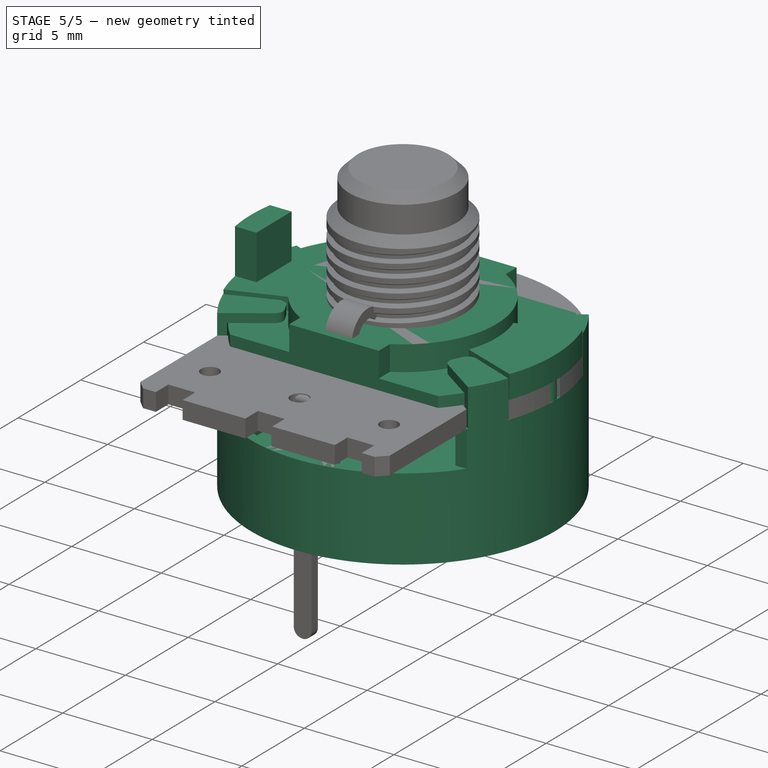
[diagram: stage 5 of 5 — iso view after this stage's code; geometry added in this stage tinted green]
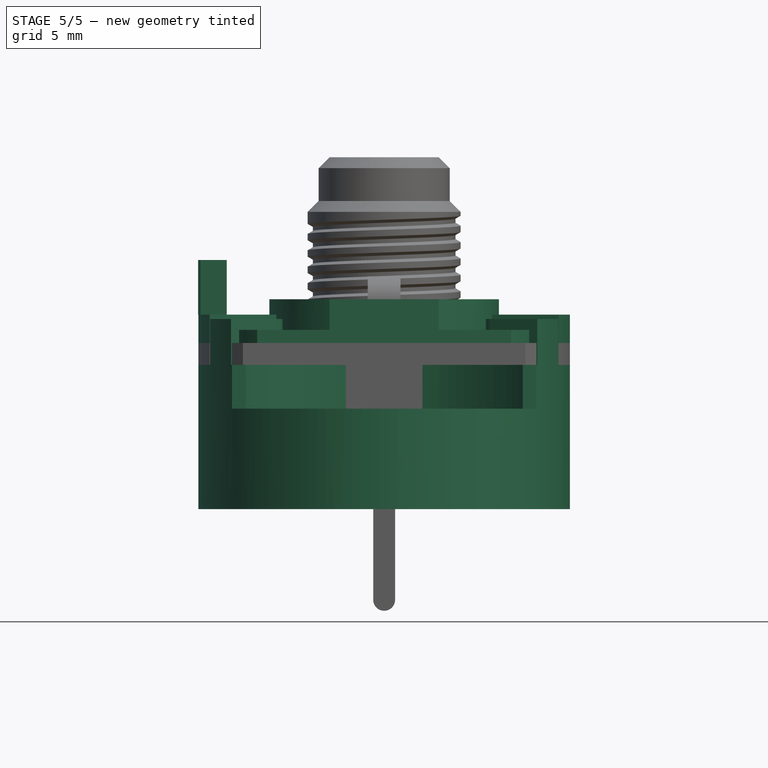
[diagram: stage 5 of 5 — front view after this stage's code; geometry added in this stage tinted green]
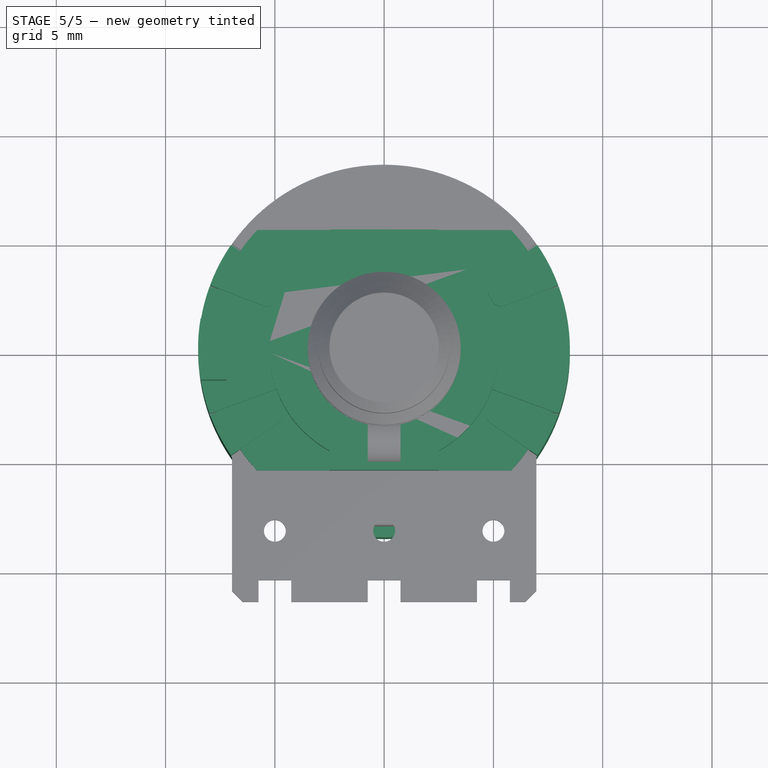
[diagram: stage 5 of 5 — top view after this stage's code; geometry added in this stage tinted green]
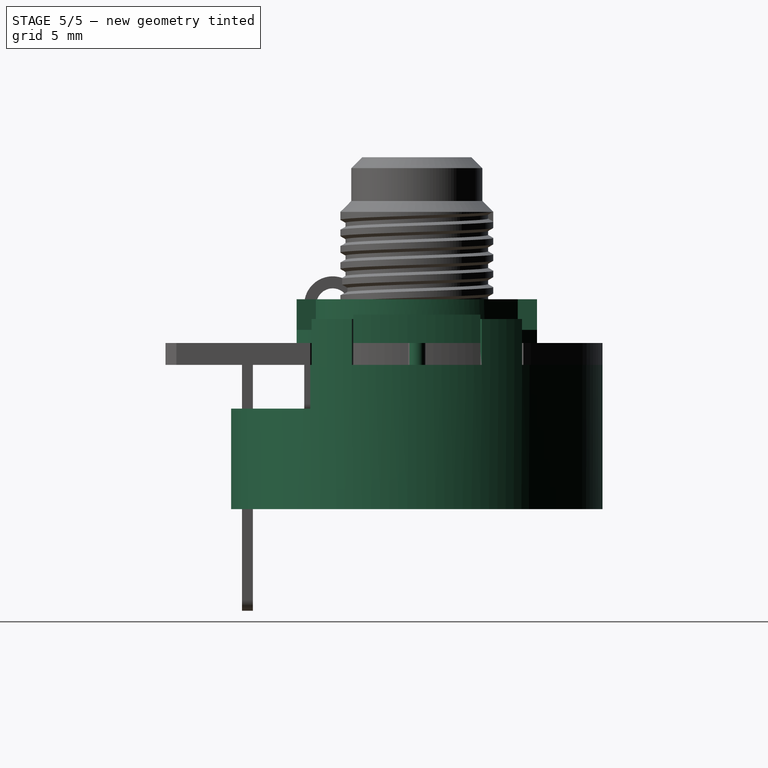
[diagram: stage 5 of 5 — right view after this stage's code; geometry added in this stage tinted green]
FEATURE [Spreadsheet::Sheet] Spreadsheet001  label="Data"
  cells = A1=Part; B1=Metal Body, 16 mm; A2=Diameter, major; B2==17mm; A3=Diameter, minor; B3==16mm; A4=Angle, major; B4=40; A5=Angle, minor; B5=23; A6=Height; B6==11mm; A8=Rectangle width; B8(rectanglewidth)==5mm; A9=Circle diameter; B9(circlediameter)==10.5mm; A10=Mounting pin diameter; B10(mountingpindiameter)==0.8mm; A11=Tab width; B11(tabwidth)==1.2mm; A12=Tab height; B12(tabheight)==2.8mm; A13=Tab position; B13(tabposition)==7.8mm; A14=Pocket diameter; B14(pocketdiameter)==10mm; A16=Pad & Pocket lengths; A17=Base thickness; B17(basethickness)==0.6mm; D17=Actual thickness; A18=Cross thickness; B18(crossthickness)==0.7mm; D18=1.3; A19=Rectcircle thickness; B19(rectcirclethickness)==1.4mm; D19=1.8; A20=Mounting pin thickness; B20(mountingpinthickness)==1mm; D20=1; A21=Tab thickness; B21(tabthickness)==2.5mm; D21=2; A22=Pocket thickness; B22(pocketthickness)==1mm; A24=Thread length; B24(threadlength)==6.5mm; D24=Datasheet: A; A25=Thread diameter; B25(threaddiameter)==7mm; A26=Thread depth; B26(threaddepth)==0.5mm; A27=Thread pitch; B27(threadpitch)==1mm; A28=Bushing length; B28(bushinglength)==1.2mm; D28=Datasheet C
FEATURE [Sketcher::SketchObject] Sketch  label="BaseSketch"
  MapMode = 5
  Support = -> [XY_Plane]
  sketch-geometry (28):
    g0: Circle [constr] CenterX=0 CenterY=0 CenterZ=0 NormalX=0 NormalY=0 NormalZ=1 AngleXU=0 Radius=8.5
    g1: ArcOfCircle CenterX=0 CenterY=9e-16 CenterZ=0 NormalX=0 NormalY=0 NormalZ=1 AngleXU=0 Radius=8.5 StartAngle=2.79253 EndAngle=3.49066
    g2: ArcOfCircle CenterX=0 CenterY=9e-16 CenterZ=0 NormalX=0 NormalY=0 NormalZ=1 AngleXU=0 Radius=8.5 StartAngle=5.93412 EndAngle=6.63225
    g3: LineSegment [constr] StartX=-7.98739 StartY=-2.90717 StartZ=0 EndX=0 EndY=9e-16 EndZ=0
    g4: LineSegment [constr] StartX=0 StartY=9e-16 StartZ=0 EndX=-7.98739 EndY=2.90717 EndZ=0
    g5: LineSegment [constr] StartX=0 StartY=9e-16 StartZ=0 EndX=7.98739 EndY=2.90717 EndZ=0
    g6: LineSegment [constr] StartX=7.98739 StartY=-2.90717 StartZ=0 EndX=0 EndY=9e-16 EndZ=0
    g7: Circle [constr] CenterX=0 CenterY=9e-16 CenterZ=0 NormalX=0 NormalY=0 NormalZ=1 AngleXU=0 Radius=8
    g8: ArcOfCircle CenterX=0 CenterY=9e-16 CenterZ=0 NormalX=0 NormalY=0 NormalZ=1 AngleXU=0 Radius=8 StartAngle=2.38355 EndAngle=2.78498
    g9: ArcOfCircle CenterX=0 CenterY=9e-16 CenterZ=0 NormalX=0 NormalY=0 NormalZ=1 AngleXU=0 Radius=8 StartAngle=0.356615 EndAngle=0.758041
    g10: ArcOfCircle CenterX=0 CenterY=9e-16 CenterZ=0 NormalX=0 NormalY=0 NormalZ=1 AngleXU=0 Radius=8 StartAngle=3.49821 EndAngle=3.89963
    g11: ArcOfCircle CenterX=0 CenterY=9e-16 CenterZ=0 NormalX=0 NormalY=0 NormalZ=1 AngleXU=0 Radius=8 StartAngle=5.52514 EndAngle=5.92657
    g12: LineSegment [constr] StartX=0 StartY=9e-16 StartZ=0 EndX=7.49667 EndY=-2.79283 EndZ=0
    g13: LineSegment [constr] StartX=5.80948 StartY=-5.5 StartZ=0 EndX=0 EndY=9e-16 EndZ=0
    g14: LineSegment [constr] StartX=0 StartY=9e-16 StartZ=0 EndX=-5.80948 EndY=-5.5 EndZ=0
    g15: LineSegment [constr] StartX=-7.49667 StartY=-2.79283 StartZ=0 EndX=0 EndY=9e-16 EndZ=0
    g16: LineSegment [constr] StartX=0 StartY=9e-16 StartZ=0 EndX=-7.49667 EndY=2.79283 EndZ=0
    g17: LineSegment [constr] StartX=-5.80948 StartY=5.5 StartZ=0 EndX=0 EndY=9e-16 EndZ=0
    g18: LineSegment [constr] StartX=0 StartY=9e-16 StartZ=0 EndX=5.80948 EndY=5.5 EndZ=0
    g19: LineSegment [constr] StartX=7.49667 StartY=2.79283 StartZ=0 EndX=0 EndY=9e-16 EndZ=0
    g20: LineSegment [constr] StartX=-5.80948 StartY=5.5 StartZ=0 EndX=-5.80948 EndY=-5.5 EndZ=0
    g21: LineSegment [constr] StartX=5.80948 StartY=5.5 StartZ=0 EndX=5.80948 EndY=-5.5 EndZ=0
    g22: LineSegment StartX=-5.80948 StartY=5.5 StartZ=0 EndX=5.80948 EndY=5.5 EndZ=0
    g23: LineSegment StartX=5.80948 StartY=-5.5 StartZ=0 EndX=-5.80948 EndY=-5.5 EndZ=0
    g24: LineSegment StartX=-7.98739 StartY=2.90717 StartZ=0 EndX=-7.49667 EndY=2.79283 EndZ=0
    g25: LineSegment StartX=-7.49667 StartY=-2.79283 StartZ=0 EndX=-7.98739 EndY=-2.90717 EndZ=0
    g26: LineSegment StartX=7.49667 StartY=-2.79283 StartZ=0 EndX=7.98739 EndY=-2.90717 EndZ=0
    g27: LineSegment StartX=7.49667 StartY=2.79283 StartZ=0 EndX=7.98739 EndY=2.90717 EndZ=0
  constraints (68):
    c: Coincident(g0,g-1)
    c: PointOnObject(g1,g0)
    c: Symmetric(g1,g1,g-1)
    c: Diameter(g0) = 17
    c: Coincident(g2,g1)
    c: PointOnObject(g2,g0)
    c: Symmetric(g2,g2,g-1)
    c: Equal(g1,g2)
    c: Coincident(g3,g1)
    c: Coincident(g3,g1)
    c: Coincident(g4,g1)
    c: Coincident(g4,g1)
    c: Angle(g4,g3) = 0.698132
    c: Coincident(g5,g1)
    c: Coincident(g5,g2)
    c: Coincident(g6,g2)
    c: Coincident(g6,g1)
    c: Angle(g6,g5) = 0.698132
    c: Coincident(g7,g1)
    c: Diameter(g7) = 16
    c: Coincident(g8,g1)
    c: PointOnObject(g8,g7)
    c: Coincident(g9,g1)
    c: Coincident(g10,g1)
    c: Coincident(g11,g1)
    c: PointOnObject(g10,g7)
    c: PointOnObject(g9,g7)
    c: PointOnObject(g11,g7)
    c: Coincident(g12,g1)
    c: Coincident(g12,g11)
    c: Coincident(g13,g11)
    c: Coincident(g13,g1)
    c: Coincident(g14,g1)
    c: Coincident(g14,g10)
    c: Coincident(g15,g10)
    c: Coincident(g15,g1)
    c: Coincident(g16,g1)
    c: Coincident(g16,g8)
    c: Coincident(g17,g8)
    c: Coincident(g17,g1)
    c: Coincident(g18,g1)
    c: Coincident(g18,g9)
    c: Coincident(g19,g9)
    c: Coincident(g19,g1)
    c: Angle(g19,g18) = 0.401426
    c: Angle(g17,g16) = 0.401426
    c: Angle(g15,g14) = 0.401426
    c: Angle(g13,g12) = 0.401426
    c: Coincident(g20,g8)
    c: Coincident(g20,g10)
    c: Vertical(g20)
    c: DistanceY(g20,g20) = 11
    c: Coincident(g21,g9)
    c: Coincident(g21,g11)
    c: Vertical(g21)
    c: DistanceY(g21,g21) = 11
    c: Coincident(g22,g8)
    c: Coincident(g22,g9)
    c: Coincident(g23,g11)
    c: Coincident(g23,g10)
    c: Coincident(g24,g1)
    c: Coincident(g24,g8)
    c: Coincident(g25,g10)
    c: Coincident(g25,g1)
    c: Coincident(g26,g11)
    c: Coincident(g26,g2)
    c: Coincident(g27,g9)
    c: Coincident(g27,g2)
FEATURE [Sketcher::SketchObject] Sketch003  label="MountingPinSketch"
  ExternalGeometry = -> [Sketch]
  MapMode = 5
  Support = -> [XY_Plane]
  expr: Constraints[5] = Data.mountingpindiameter
  expr: Constraints[4] = Data.mountingpindiameter
  sketch-geometry (2):
    g0: Circle CenterX=-8.1 CenterY=0 CenterZ=0 NormalX=0 NormalY=0 NormalZ=1 AngleXU=0 Radius=0.4
    g1: Circle CenterX=8.1 CenterY=0 CenterZ=0 NormalX=0 NormalY=0 NormalZ=1 AngleXU=0 Radius=0.4
  constraints (6):
    c: PointOnObject(g0,g-1)
    c: Tangent(g0,g-3)
    c: PointOnObject(g1,g-1)
    c: Tangent(g1,g-4)
    c: Diameter(g0) = 0.8
    c: Diameter(g1) = 0.8
FEATURE [PartDesign::Pad] Pad  label="BasePad"
  Length = 0.6
  Length2 = 100
  Profile = -> Sketch
  Type = 0
  expr: Length = Data.basethickness
FEATURE [Sketcher::SketchObject] Sketch001  label="CrossSketch"
  ExternalGeometry = -> [Sketch]
  MapMode = 5
  Placement = pos=(0,0,0.6) rot=(0,0,1;0rad)
  Support = -> [Pad]
  sketch-geometry (12):
    g0: ArcOfCircle CenterX=0 CenterY=0 CenterZ=0 NormalX=0 NormalY=0 NormalZ=1 AngleXU=0 Radius=8.5 StartAngle=2.79253 EndAngle=3.49066
    g1: ArcOfCircle CenterX=0 CenterY=0 CenterZ=0 NormalX=0 NormalY=0 NormalZ=1 AngleXU=0 Radius=8.5 StartAngle=5.93412 EndAngle=6.63225
    g2: LineSegment StartX=-7.98739 StartY=2.90717 StartZ=0 EndX=-3.03745 EndY=1.10554 EndZ=0
    g3: LineSegment StartX=3.16655 StartY=1.05855 StartZ=0 EndX=7.98739 EndY=2.90717 EndZ=0
    g4: LineSegment StartX=7.98739 StartY=-2.90717 StartZ=0 EndX=3.13745 EndY=-1.14194 EndZ=0
    g5: LineSegment StartX=-3.03745 StartY=-1.10554 StartZ=0 EndX=-7.98739 EndY=-2.90717 EndZ=0
    g6: LineSegment [constr] StartX=-3.03745 StartY=1.10554 StartZ=0 EndX=0 EndY=0 EndZ=0
    g7: LineSegment [constr] StartX=0 StartY=0 StartZ=0 EndX=-3.03745 EndY=-1.10554 EndZ=0
    g8: LineSegment [constr] StartX=0 StartY=0 StartZ=0 EndX=3.16655 EndY=1.05855 EndZ=0
    g9: LineSegment [constr] StartX=3.13745 StartY=-1.14194 StartZ=0 EndX=0 EndY=0 EndZ=0
    g10: ArcOfCircle CenterX=0 CenterY=0 CenterZ=0 NormalX=0 NormalY=0 NormalZ=1 AngleXU=0 Radius=3.23239 StartAngle=2.79253 EndAngle=3.49066
    g11: ArcOfCircle CenterX=0 CenterY=0 CenterZ=0 NormalX=0 NormalY=0 NormalZ=1 AngleXU=0 Radius=3.3388 StartAngle=5.93412 EndAngle=6.6058
  constraints (26):
    c: Coincident(g2,g-3)
    c: Coincident(g5,g-3)
    c: Coincident(g0,g5)
    c: Coincident(g0,g2)
    c: Coincident(g0,g-1)
    c: Coincident(g1,g0)
    c: Coincident(g1,g-4)
    c: Coincident(g1,g-4)
    c: Coincident(g4,g1)
    c: Coincident(g1,g3)
    c: Symmetric(g2,g5,g-1)
    c: Coincident(g6,g2)
    c: Coincident(g6,g0)
    c: Coincident(g7,g0)
    c: Coincident(g7,g5)
    c: Coincident(g8,g0)
    c: Coincident(g8,g3)
    c: Coincident(g9,g4)
    c: Coincident(g9,g0)
    c: Angle(g9,g4) = 3.14159
    c: Coincident(g10,g0)
    c: Coincident(g10,g2)
    c: Coincident(g10,g5)
    c: Coincident(g11,g0)
    c: Coincident(g11,g3)
    c: Coincident(g11,g4)
FEATURE [PartDesign::Pad] Pad001  label="CrossPad"
  BaseFeature = -> Pad
  Length = 0.7
  Length2 = 100
  Profile = -> Sketch001
  Type = 0
  expr: Length = Data.crossthickness
FEATURE [Sketcher::SketchObject] Sketch002  label="RectCircleSketch"
  ExternalGeometry = -> [Sketch]
  MapMode = 5
  Placement = pos=(0,0,0.6) rot=(0,0,1;0rad)
  Support = -> [Pad001]
  expr: Constraints[19] = Data.circlediameter
  expr: Constraints[12] = Data.rectanglewidth
  expr: Constraints[5] = Data.rectanglewidth
  sketch-geometry (8):
    g0: LineSegment StartX=-2.5 StartY=5.5 StartZ=0 EndX=-2.5 EndY=4.61655 EndZ=0
    g1: LineSegment StartX=2.5 StartY=5.5 StartZ=0 EndX=2.5 EndY=4.61655 EndZ=0
    g2: LineSegment StartX=2.5 StartY=5.5 StartZ=0 EndX=-2.5 EndY=5.5 EndZ=0
    g3: LineSegment StartX=-2.5 StartY=-5.5 StartZ=0 EndX=-2.5 EndY=-4.61655 EndZ=0
    g4: LineSegment StartX=2.5 StartY=-5.5 StartZ=0 EndX=2.5 EndY=-4.61655 EndZ=0
    g5: LineSegment StartX=2.5 StartY=-5.5 StartZ=0 EndX=-2.5 EndY=-5.5 EndZ=0
    g6: ArcOfCircle CenterX=0 CenterY=0 CenterZ=0 NormalX=0 NormalY=0 NormalZ=1 AngleXU=0 Radius=5.25 StartAngle=2.06711 EndAngle=4.21607
    g7: ArcOfCircle CenterX=0 CenterY=0 CenterZ=0 NormalX=0 NormalY=0 NormalZ=1 AngleXU=0 Radius=5.25 StartAngle=5.20871 EndAngle=7.35766
  constraints (21):
    c: PointOnObject(g0,g-3)
    c: Vertical(g0)
    c: Coincident(g2,g1)
    c: Coincident(g2,g0)
    c: Symmetric(g1,g0,g-2)
    c: DistanceX(g2,g2) = 5
    c: PointOnObject(g3,g-4)
    c: Vertical(g3)
    c: Vertical(g4)
    c: Coincident(g5,g4)
    c: Coincident(g5,g3)
    c: Symmetric(g4,g3,g-2)
    c: DistanceX(g5,g5) = 5
    c: Coincident(g6,g-1)
    c: Coincident(g6,g0)
    c: Coincident(g6,g3)
    c: Coincident(g7,g6)
    c: Coincident(g7,g1)
    c: Coincident(g7,g4)
    c: Distance(g1,g3) = 10.5
    c: Symmetric(g1,g0,g-2)
FEATURE [PartDesign::Pad] Pad002  label="RectCirclePad"
  BaseFeature = -> Pad001
  Length = 1.4
  Length2 = 100
  Profile = -> Sketch002
  Type = 0
  expr: Length = Data.rectcirclethickness
FEATURE [PartDesign::Pad] Pad003  label="MountingPinPad"
  BaseFeature = -> Pad002
  Length = 1
  Length2 = 100
  Profile = -> Sketch003
  Reversed = true
  Type = 0
  expr: Length = Data.mountingpinthickness
FEATURE [Sketcher::SketchObject] Sketch004  label="TabSketch"
  ExternalGeometry = -> [Pad003]
  MapMode = 5
  Placement = pos=(0,0,1.3) rot=(0,0,1;0rad)
  Support = -> [Pad003]
  expr: Constraints[11] = Data.tabposition
  expr: Constraints[5] = Data.tabheight
  expr: Constraints[4] = Data.tabwidth
  sketch-geometry (6):
    g0: LineSegment StartX=-8.4 StartY=1.4 StartZ=0 EndX=-7.2 EndY=1.4 EndZ=0
    g1: LineSegment StartX=-7.2 StartY=1.4 StartZ=0 EndX=-7.2 EndY=-1.4 EndZ=0
    g2: LineSegment StartX=-7.2 StartY=-1.4 StartZ=0 EndX=-8.4 EndY=-1.4 EndZ=0
    g3: LineSegment [constr] StartX=-7.2 StartY=1.4 StartZ=0 EndX=-8.4 EndY=-1.4 EndZ=0
    g4: GeomPoint X=-7.8 Y=0 Z=0
    g5: ArcOfCircle CenterX=0 CenterY=0 CenterZ=0 NormalX=0 NormalY=0 NormalZ=1 AngleXU=0 Radius=8.51587 StartAngle=2.97644 EndAngle=3.30674
  constraints (15):
    c: Coincident(g0,g1)
    c: Coincident(g1,g2)
    c: Horizontal(g0)
    c: Horizontal(g2)
    c: DistanceX(g0,g0) = 1.2
    c: DistanceY(g1,g1) = 2.8
    c: Coincident(g3,g0)
    c: Coincident(g3,g2)
    c: PointOnObject(g4,g3)
    c: PointOnObject(g4,g-1)
    c: Symmetric(g0,g1,g-1)
    c: DistanceX(g4,g-1) = 7.8
    c: Coincident(g5,g-1)
    c: Coincident(g5,g0)
    c: Coincident(g5,g2)
FEATURE [PartDesign::Pad] Pad004  label="TabPab"
  BaseFeature = -> Pad003
  Length = 2.5
  Length2 = 100
  Profile = -> Sketch004
  Type = 0
  expr: Length = Data.tabthickness
FEATURE [Sketcher::SketchObject] Sketch005  label="CavitySketch"
  MapMode = 5
  Placement = pos=(0,0,0) rot=(1,0,0;3.14159rad)
  Support = -> [Pad004]
  expr: Constraints[1] = Data.pocketdiameter
  sketch-geometry (1):
    g0: Circle CenterX=0 CenterY=0 CenterZ=0 NormalX=0 NormalY=0 NormalZ=1 AngleXU=0 Radius=5
  constraints (2):
    c: Coincident(g0,g-1)
    c: Diameter(g0) = 10
FEATURE [PartDesign::Pocket] Pocket  label="Cavity"
  BaseFeature = -> Pad004
  Length = 1
  Length2 = 100
  Profile = -> Sketch005
  Type = 0
  expr: Length = Data.pocketthickness
FEATURE [PartDesign::Body] Body  label="Metal Body, 16 mm"
  Group = -> [Sketch,Sketch001,Sketch002,Sketch003,Sketch004,Pad,Pad001,Pad002,Pad003,Pad004,Sketch005,Pocket]
  Origin = -> Origin
  Tip = -> Pocket
FEATURE [PartDesign::Plane] DatumPlane
  Length = 24
  MapMode = 5
  Placement = pos=(0,0,-1) rot=(1,0,0;3.14159rad)
  ResizeMode = 0
  Width = 24
FEATURE [Sketcher::SketchObject] Sketch007  label="HousingSketch"
  MapMode = 5
  Placement = pos=(0,0,-1) rot=(1,0,0;3.14159rad)
  Support = -> [DatumPlane]
  sketch-geometry (1):
    g0: Circle CenterX=0 CenterY=0 CenterZ=0 NormalX=0 NormalY=0 NormalZ=1 AngleXU=0 Radius=8.5
  constraints (2):
    c: Coincident(g0,g-1)
    c: Radius(g0) = 8.5
FEATURE [PartDesign::Pad] Pad006  label="HousingPad"
  Length = 6.6
  Length2 = 100
  Placement = pos=(0,0,-1) rot=(1,0,0;3.14159rad)
  Profile = -> Sketch007
  Type = 0
FEATURE [PartDesign::Thickness] Thickness  label="HousingThickness"
  Base = -> Pad006 [Face2]
  BaseFeature = -> Pad006
  Join = 0
  Mode = 0
  Reversed = true
  Value = 0.5
FEATURE [Sketcher::SketchObject] Sketch008  label="ClipExtensionSketch"
  ExternalGeometry = -> [Thickness]
  MapMode = 5
  Placement = pos=(0,0,-1) rot=(0,0,1;0rad)
  Support = -> [Thickness]
  sketch-geometry (6):
    g0: ArcOfCircle CenterX=0 CenterY=0 CenterZ=0 NormalX=0 NormalY=0 NormalZ=1 AngleXU=0 Radius=8.5 StartAngle=2.53955 EndAngle=2.78478
    g1: ArcOfCircle CenterX=0 CenterY=0 CenterZ=0 NormalX=0 NormalY=0 NormalZ=1 AngleXU=0 Radius=8.04721 StartAngle=2.53955 EndAngle=2.78478
    g2: LineSegment [constr] StartX=0 StartY=0 StartZ=0 EndX=-7.00553 EndY=4.81379 EndZ=0
    g3: LineSegment [constr] StartX=0 StartY=0 StartZ=0 EndX=-7.96462 EndY=2.96897 EndZ=0
    g4: LineSegment StartX=-6.63235 StartY=4.55737 StartZ=0 EndX=-7.00553 EndY=4.81379 EndZ=0
    g5: LineSegment StartX=-7.54036 StartY=2.81082 StartZ=0 EndX=-7.96462 EndY=2.96897 EndZ=0
  constraints (13):
    c: Coincident(g0,g-1)
    c: PointOnObject(g0,g-3)
    c: Coincident(g1,g0)
    c: Coincident(g2,g0)
    c: Coincident(g2,g0)
    c: Coincident(g3,g0)
    c: Coincident(g3,g0)
    c: PointOnObject(g1,g3)
    c: PointOnObject(g1,g2)
    c: Coincident(g4,g1)
    c: Coincident(g4,g0)
    c: Coincident(g5,g1)
    c: Coincident(g5,g0)
FEATURE [PartDesign::Pad] Pad007  label="ClipExtensionPad"
  BaseFeature = -> Thickness
  Length = 1.6
  Length2 = 100
  Profile = -> Sketch008
  Type = 0
FEATURE [PartDesign::PolarPattern] PolarPattern
  Angle = 360
  Axis = -> Sketch008 [N_Axis]
  Occurrences = 2
FEATURE [PartDesign::Mirrored] Mirrored
  MirrorPlane = -> Sketch008 [V_Axis]
FEATURE [PartDesign::MultiTransform] MultiTransform  label="ClipExtensionMultiTransform"
  BaseFeature = -> Pad007
  Originals = -> [Pad007]
  Transformations = -> [PolarPattern,Mirrored]
FEATURE [Sketcher::SketchObject] Sketch009  label="ClipBendSketch"
  ExternalGeometry = -> [MultiTransform]
  MapMode = 5
  Placement = pos=(0,-1e-16,0.6) rot=(0,0,1;0rad)
  Support = -> [MultiTransform]
  sketch-geometry (6):
    g0: ArcOfCircle CenterX=-0.0489969 CenterY=0.0254728 CenterZ=0 NormalX=0 NormalY=0 NormalZ=1 AngleXU=0 Radius=8.44519 StartAngle=2.53875 EndAngle=2.78558
    g1: LineSegment [constr] StartX=-7.00553 StartY=4.81379 StartZ=0 EndX=-0.0489969 EndY=0.0254728 EndZ=0
    g2: LineSegment [constr] StartX=-0.0489969 StartY=0.0254728 StartZ=0 EndX=-7.96462 EndY=2.96897 EndZ=0
    g3: ArcOfCircle CenterX=-0.0489969 CenterY=0.0254728 CenterZ=0 NormalX=0 NormalY=0 NormalZ=1 AngleXU=0 Radius=5.36646 StartAngle=2.53875 EndAngle=2.79214
    g4: LineSegment StartX=-7.00553 StartY=4.81379 StartZ=0 EndX=-4.46949 EndY=3.06819 EndZ=0
    g5: LineSegment StartX=-5.09111 StartY=1.86285 StartZ=0 EndX=-7.96462 EndY=2.96897 EndZ=0
  constraints (12):
    c: Coincident(g0,g-3)
    c: Coincident(g0,g-3)
    c: Coincident(g1,g0)
    c: Coincident(g1,g0)
    c: Coincident(g2,g0)
    c: Coincident(g2,g0)
    c: Coincident(g3,g0)
    c: Coincident(g4,g0)
    c: Coincident(g4,g3)
    c: Coincident(g5,g3)
    c: Coincident(g5,g0)
    c: PointOnObject(g3,g1)
FEATURE [PartDesign::Pad] Pad008  label="ClipBendPad"
  BaseFeature = -> MultiTransform
  Length = 0.5
  Length2 = 100
  Profile = -> Sketch009
  Type = 0
FEATURE [PartDesign::PolarPattern] PolarPattern001
  Angle = 360
  Axis = -> Sketch009 [N_Axis]
  Occurrences = 2
FEATURE [PartDesign::Mirrored] Mirrored001
  MirrorPlane = -> Sketch009 [V_Axis]
FEATURE [PartDesign::MultiTransform] MultiTransform001  label="ClipBendMultiTransform"
  BaseFeature = -> Pad008
  Originals = -> [Pad008]
  Transformations = -> [PolarPattern001,Mirrored001]
FEATURE [PartDesign::ShapeBinder] ShapeBinder001
  Placement = pos=(0,0,-1) rot=(0,0,1;0rad)
  TraceSupport = false
FEATURE [Sketcher::SketchObject] Sketch011  label="HousingCutoutSketch"
  ExternalGeometry = -> [ShapeBinder001]
  MapMode = 5
  Placement = pos=(0,0,-1) rot=(1,0,0;3.14159rad)
  Support = -> [ShapeBinder001]
  sketch-geometry (4):
    g0: LineSegment StartX=6.96279 StartY=11.5 StartZ=0 EndX=-6.96279 EndY=11.5 EndZ=0
    g1: LineSegment StartX=-6.96279 StartY=11.5 StartZ=0 EndX=-6.96279 EndY=4.8754 EndZ=0
    g2: LineSegment StartX=-6.96279 StartY=4.8754 StartZ=0 EndX=6.96279 EndY=4.8754 EndZ=0
    g3: LineSegment StartX=6.96279 StartY=4.8754 StartZ=0 EndX=6.96279 EndY=11.5 EndZ=0
  constraints (10):
    c: Coincident(g0,g1)
    c: Coincident(g1,g2)
    c: Coincident(g2,g3)
    c: Coincident(g3,g0)
    c: Horizontal(g0)
    c: Horizontal(g2)
    c: Vertical(g1)
    c: Vertical(g3)
    c: Coincident(g0,g-4)
    c: Coincident(g1,g-5)
FEATURE [PartDesign::Pocket] Pocket001  label="HousingCutoutPocket"
  BaseFeature = -> MultiTransform001
  Length = 2
  Length2 = 100
  Profile = -> Sketch011
  Reversed = true
  Type = 0
FEATURE [PartDesign::Fillet] Fillet006
  Base = -> Pocket001 [Edge110,Edge108,Edge103,Edge105,Edge120,Edge118,Edge115,Edge113]
  BaseFeature = -> Pocket001
  Radius = 0.5
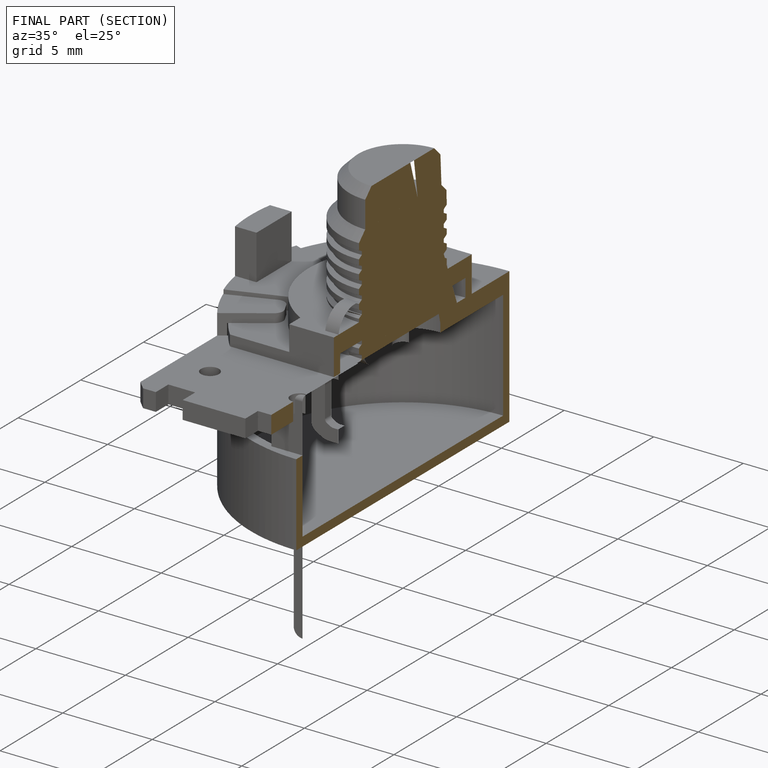
[diagram: finished part — half-section view (interior)]
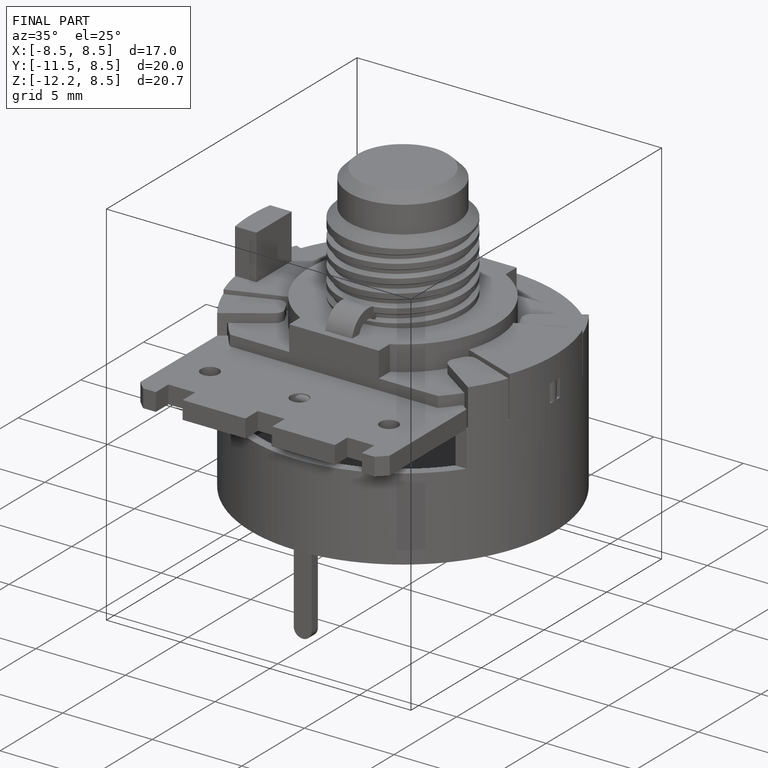
[diagram: finished part — iso view with bounding-box wireframe]
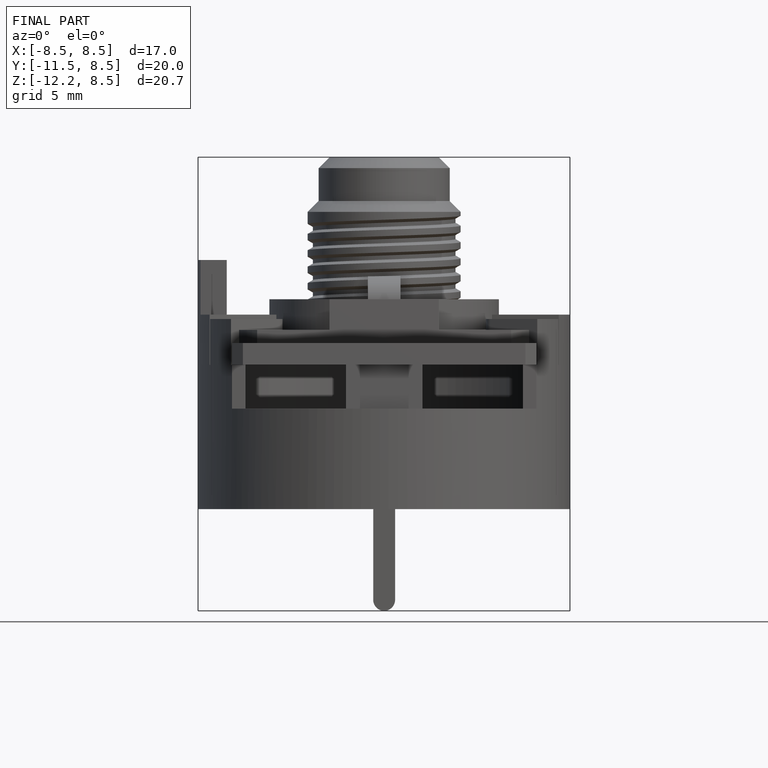
[diagram: finished part — front view with bounding-box wireframe]
